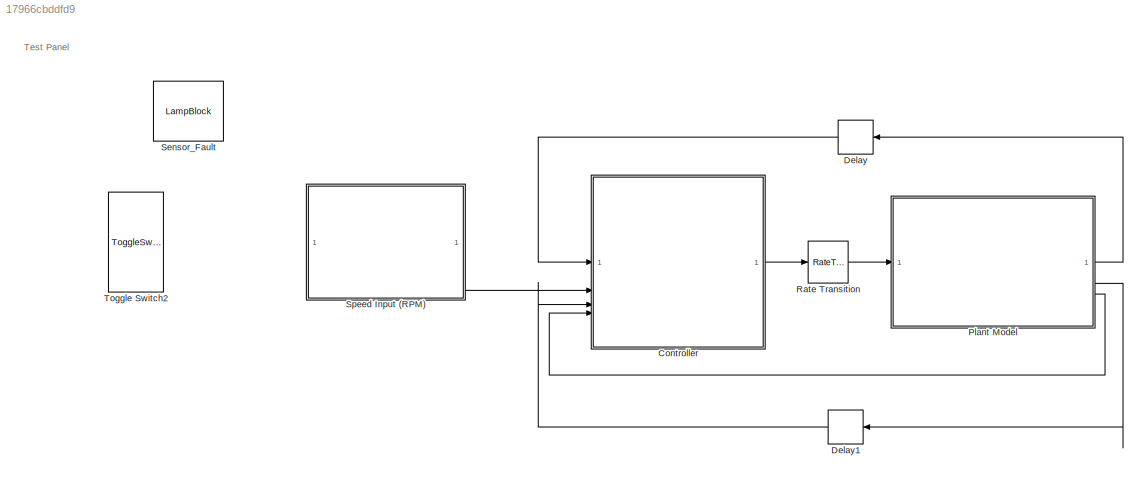
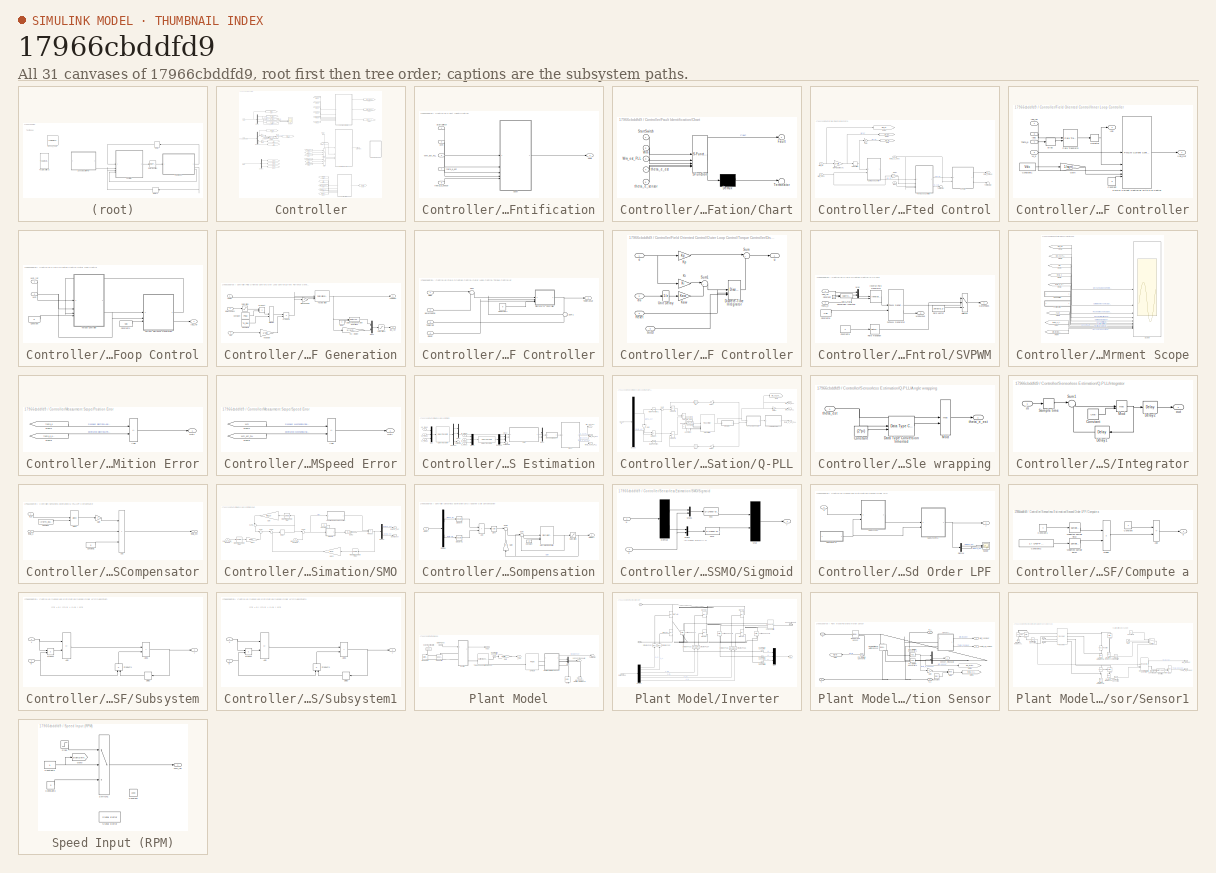
[diagram: thumbnail index - all 31 canvases of the model, root first then tree order]
MODEL slx_17966cbddfd9
KIND model
CONFIG AbsTol = auto
CONFIG EnableMultiTasking = off
CONFIG FixedStep = auto
CONFIG MaxStep = auto
CONFIG MinStep = auto
CONFIG RelTol = 1e-7
CONFIG SampleTimeConstraint = Unconstrained
CONFIG SolverName = ode23
CONFIG StartTime = 0.0
CONFIG StopTime = 1
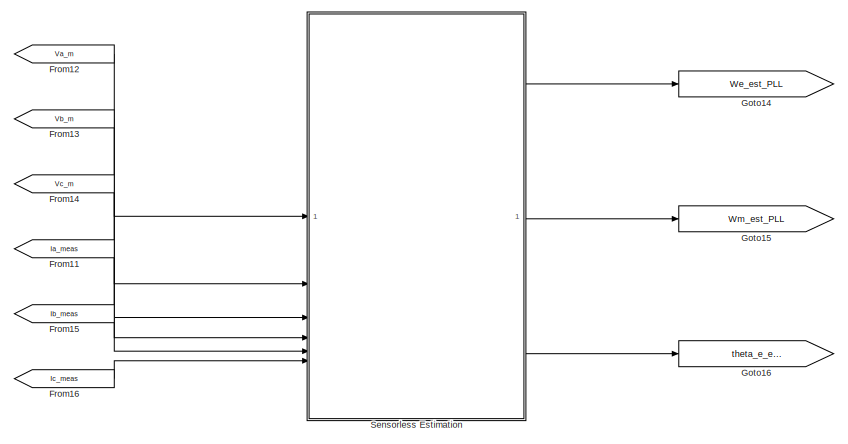
[diagram: Controller - part 1/3, top right region]
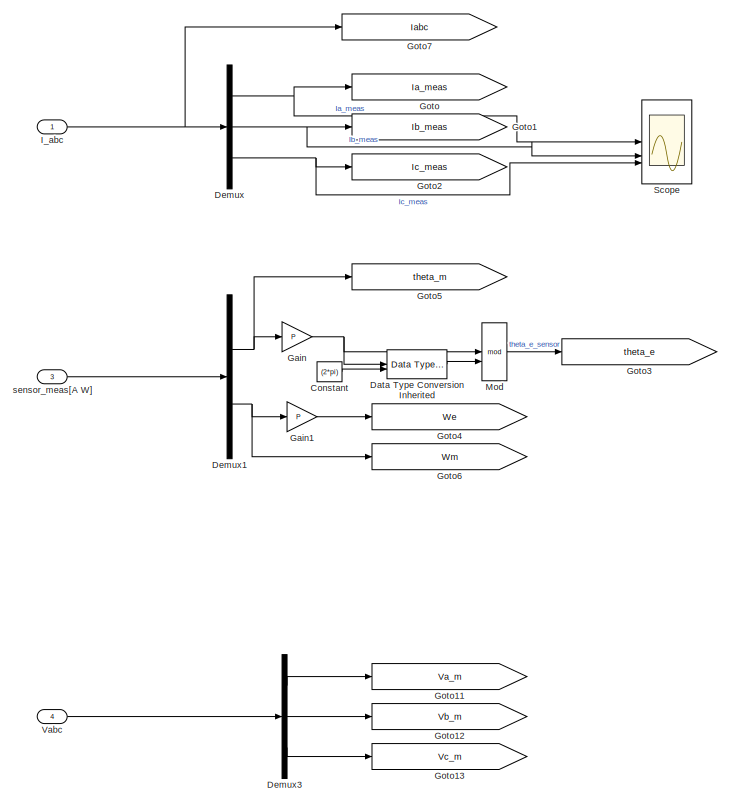
[diagram: Controller - part 2/3, middle left region]
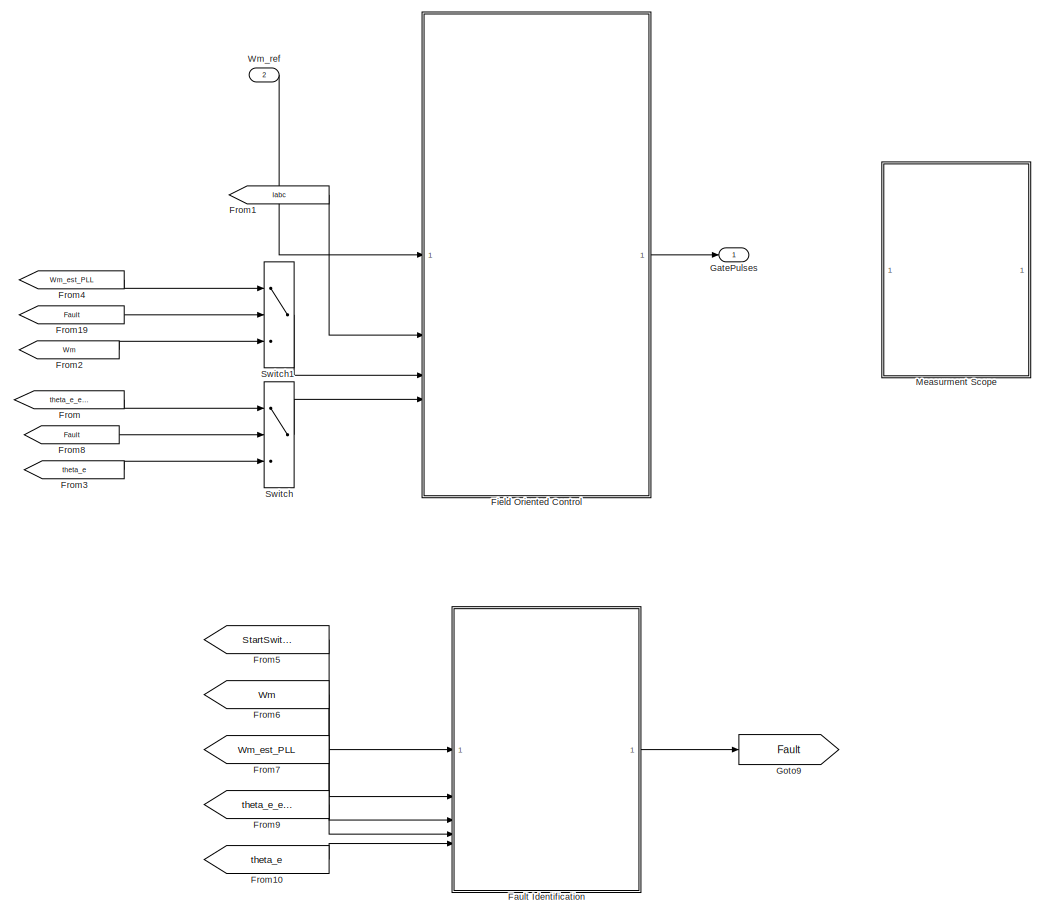
[diagram: Controller - part 3/3, bottom right region]
BLOCK [SubSystem] Controller
BLOCK [Constant] Controller/Constant
  Value = (2*pi)
BLOCK [Reference] Controller/Data Type Conversion Inherited  REF=simulink/Signal
Attributes/Data Type
Conversion
Inherited
  SourceBlock = simulink/Signal\nAttributes/Data Type\nConversion\nInherited
  SourceType = Conversion Inherited
BLOCK [Demux] Controller/Demux
  Outputs = 3
BLOCK [Demux] Controller/Demux1
  Outputs = 2
BLOCK [Demux] Controller/Demux3
  Outputs = 3
BLOCK [SubSystem] Controller/Fault Identification
BLOCK [SubSystem] Controller/Fault Identification/Chart
  ErrorFcn = Stateflow.Translate.translate
  PermitHierarchicalResolution = ExplicitOnly
  SFBlockType = Chart
  TreatAsAtomicUnit = on
BLOCK [Demux] Controller/Fault Identification/Chart/ Demux 
  Outputs = 1
BLOCK [S-Function] Controller/Fault Identification/Chart/ SFunction 
  EnableBusSupport = on
  FunctionName = sf_sfun
  PortCounts = [5 2]
  SFcnIsStateOwnerBlock = off
  SFunctionDeploymentMode = off
  Tag = Stateflow S-Function 3
BLOCK [Terminator] Controller/Fault Identification/Chart/ Terminator 
BLOCK [Outport] Controller/Fault Identification/Chart/Fault
BLOCK [Inport] Controller/Fault Identification/Chart/StartSwitch
BLOCK [Inport] Controller/Fault Identification/Chart/Wm
  Port = 2
BLOCK [Inport] Controller/Fault Identification/Chart/Wm_est_PLL
  Port = 3
BLOCK [Inport] Controller/Fault Identification/Chart/theta_e_est
  Port = 4
BLOCK [Inport] Controller/Fault Identification/Chart/theta_e_sensor
  Port = 5
BLOCK [Outport] Controller/Fault Identification/Fault
BLOCK [Inport] Controller/Fault Identification/StartSwitch
BLOCK [Inport] Controller/Fault Identification/Wm
  Port = 2
BLOCK [Inport] Controller/Fault Identification/Wm_est_PLL
  Port = 3
BLOCK [Inport] Controller/Fault Identification/theta_e_est
  Port = 4
BLOCK [Inport] Controller/Fault Identification/theta_e_sensor
  Port = 5
BLOCK [SubSystem] Controller/Field Oriented Control
BLOCK [Gain] Controller/Field Oriented Control/Gain
  Gain = P
BLOCK [Gain] Controller/Field Oriented Control/Gain1
  Gain = P
BLOCK [Outport] Controller/Field Oriented Control/Gate_Pulses
BLOCK [Goto] Controller/Field Oriented Control/Goto
  GotoTag = We_ref
  TagVisibility = global
BLOCK [Goto] Controller/Field Oriented Control/Goto1
  GotoTag = Wm_ref1
  TagVisibility = global
BLOCK [Goto] Controller/Field Oriented Control/Goto8
  GotoTag = Wm_ref
  TagVisibility = global
BLOCK [Inport] Controller/Field Oriented Control/Iabc
  Port = 2
BLOCK [SubSystem] Controller/Field Oriented Control/Inner Loop Controller
BLOCK [Bias] Controller/Field Oriented Control/Inner Loop Controller/Bias
  Bias = theta_offset
  SaturateOnIntegerOverflow = off
BLOCK [Constant] Controller/Field Oriented Control/Inner Loop Controller/Constant
  SampleTime = -1
  Value = 0
BLOCK [Constant] Controller/Field Oriented Control/Inner Loop Controller/Constant1
  Value = Vdc
BLOCK [Gain] Controller/Field Oriented Control/Inner Loop Controller/Gain
  Gain = 1/sqrt(3)
BLOCK [Inport] Controller/Field Oriented Control/Inner Loop Controller/Iabc
  Port = 3
BLOCK [Outport] Controller/Field Oriented Control/Inner Loop Controller/Idq
  Port = 2
  VectorParamsAs1DForOutWhenUnconnected = off
BLOCK [Inport] Controller/Field Oriented Control/Inner Loop Controller/Idq_ref
BLOCK [Reference] Controller/Field Oriented Control/Inner Loop Controller/PMSM Current Controller with Pre Control  REF=eePmsmCurrentController/PMSM Current Controller
with Pre-Control
  LibrarySourceBlock = eePmsmFieldOrientedControl/PMSM Field-Oriented\nControl/Inner loop control/PMSM Current Controller\nwith Pre-Control
  SourceBlock = eePmsmCurrentController/PMSM Current Controller\nwith Pre-Control
  SourceType = PMSM Current Controller with Pre-Control
BLOCK [Reference] Controller/Field Oriented Control/Inner Loop Controller/Park Transform  REF=eeTransforms/Park Transform
  LibrarySourceBlock = eePmsmFieldOrientedControl/PMSM Field-Oriented\nControl/Inner loop control/Park Transform
  SourceBlock = eeTransforms/Park Transform
  SourceType = Park Transform
BLOCK [Selector] Controller/Field Oriented Control/Inner Loop Controller/Selector
  IndexOptions = Index vector (dialog)
  Indices = [1 2]
  InputPortWidth = 3
  OutputSizes = 1
BLOCK [Inport] Controller/Field Oriented Control/Inner Loop Controller/Theta_e
  Port = 4
BLOCK [Outport] Controller/Field Oriented Control/Inner Loop Controller/Vdq_Ref
  VectorParamsAs1DForOutWhenUnconnected = off
BLOCK [Inport] Controller/Field Oriented Control/Inner Loop Controller/W_e
  Port = 2
BLOCK [SubSystem] Controller/Field Oriented Control/Outer Loop Control
BLOCK [Constant] Controller/Field Oriented Control/Outer Loop Control/Constant
  Value = 0
BLOCK [Constant] Controller/Field Oriented Control/Outer Loop Control/Constant1
  Value = Vdc
BLOCK [SubSystem] Controller/Field Oriented Control/Outer Loop Control/Current Refrence Generation
BLOCK [Constant] Controller/Field Oriented Control/Outer Loop Control/Current Refrence Generation/Constant
  SampleTime = -1
  Value = Pmax
BLOCK [Constant] Controller/Field Oriented Control/Outer Loop Control/Current Refrence Generation/Constant1
  SampleTime = -1
  Value = Te_max
BLOCK [Reference] Controller/Field Oriented Control/Outer Loop Control/Current Refrence Generation/Data Type Conversion Inherited2  REF=simulink/Signal
Attributes/Data Type
Conversion
Inherited
  SourceBlock = simulink/Signal\nAttributes/Data Type\nConversion\nInherited
  SourceType = Conversion Inherited
BLOCK [Outport] Controller/Field Oriented Control/Outer Loop Control/Current Refrence Generation/Idq_ref
  Port = 2
BLOCK [MinMax] Controller/Field Oriented Control/Outer Loop Control/Current Refrence Generation/MinMax
  Inputs = 2
  OutDataTypeStr = Inherit: Same as first input
BLOCK [Mux] Controller/Field Oriented Control/Outer Loop Control/Current Refrence Generation/Mux1
  DisplayOption = bar
  Inputs = 2
BLOCK [Product] Controller/Field Oriented Control/Outer Loop Control/Current Refrence Generation/Product
  Inputs = /*
  OutDataTypeStr = Inherit: Same as first input
BLOCK [Product] Controller/Field Oriented Control/Outer Loop Control/Current Refrence Generation/Product1
BLOCK [Saturate] Controller/Field Oriented Control/Outer Loop Control/Current Refrence Generation/Saturation
  LowerLimit = (Pmax/Te_max)
  UpperLimit = inf
BLOCK [Saturate] Controller/Field Oriented Control/Outer Loop Control/Current Refrence Generation/Saturation1
  LowerLimit = -Imax
  UpperLimit = Imax
BLOCK [Gain] Controller/Field Oriented Control/Outer Loop Control/Current Refrence Generation/Sign Change
  Gain = -1
BLOCK [Reference] Controller/Field Oriented Control/Outer Loop Control/Current Refrence Generation/Tq saturation  REF=simulink/Discontinuities/Saturation
Dynamic
  SourceBlock = simulink/Discontinuities/Saturation\nDynamic
  SourceType = Saturation Dynamic
BLOCK [Gain] Controller/Field Oriented Control/Outer Loop Control/Current Refrence Generation/Tq--> iqRef
  Gain = 2/(3*P*Psi)
BLOCK [Inport] Controller/Field Oriented Control/Outer Loop Control/Current Refrence Generation/TqRef
BLOCK [Outport] Controller/Field Oriented Control/Outer Loop Control/Current Refrence Generation/TqRefSat
  VectorParamsAs1DForOutWhenUnconnected = off
BLOCK [Inport] Controller/Field Oriented Control/Outer Loop Control/Current Refrence Generation/Vdc
  Port = 3
BLOCK [Gain] Controller/Field Oriented Control/Outer Loop Control/Current Refrence Generation/Vdc factor
  Gain = 1/Vdc
BLOCK [Constant] Controller/Field Oriented Control/Outer Loop Control/Current Refrence Generation/idRef
  SampleTime = -1
  Value = 0
BLOCK [Inport] Controller/Field Oriented Control/Outer Loop Control/Current Refrence Generation/wMechanical
  Port = 2
BLOCK [Outport] Controller/Field Oriented Control/Outer Loop Control/Idq_ref
BLOCK [SubSystem] Controller/Field Oriented Control/Outer Loop Control/Torque Controller
BLOCK [Constant] Controller/Field Oriented Control/Outer Loop Control/Torque Controller/Constant7
  Value = 0
BLOCK [SubSystem] Controller/Field Oriented Control/Outer Loop Control/Torque Controller/Discrete PI Controller
  AncestorBlock = eeDiscretePi/Discrete PI Controller
  CloseFcn = ee_sli_rtmsupport( 'closefcn', gcbh );
  CopyFcn = ee_sli_rtmsupport( 'copyfcn', gcbh );
  DeleteFcn = ee_sli_rtmsupport( 'deletefcn', gcbh );
  LoadFcn = ee_sli_rtmsupport( 'loadfcn', gcbh );
  ModelCloseFcn = ee_sli_rtmsupport( 'modelclosefcn', gcbh );
  OpenFcn = ee_sli_rtmsupport( 'openfcn', gcbh );
  PostSaveFcn = ee_sli_rtmsupport( 'postsavefcn', gcbh );
  PreCopyFcn = ee_sli_rtmsupport( 'precopyfcn', gcbh );
  PreDeleteFcn = ee_sli_rtmsupport( 'predeletefcn', gcbh );
BLOCK [DiscreteIntegrator] Controller/Field Oriented Control/Outer Loop Control/Torque Controller/Discrete PI Controller/Discrete-Time Integrator
  ExternalReset = rising
  ICPrevOutput = DiscIntNeverNeededParam
  ICPrevScaledInput = DiscIntNeverNeededParam
  InitialCondition = x0
  InitialConditionSetting = Auto
  InitialConditionSource = external
  IntegratorMethod = Integration: Backward Euler
  SampleTime = Ts
BLOCK [Inport] Controller/Field Oriented Control/Outer Loop Control/Torque Controller/Discrete PI Controller/Init0
  Port = 4
BLOCK [Gain] Controller/Field Oriented Control/Outer Loop Control/Torque Controller/Discrete PI Controller/Kaw
  Gain = Kaw
BLOCK [Gain] Controller/Field Oriented Control/Outer Loop Control/Torque Controller/Discrete PI Controller/Ki
  Gain = Ki
BLOCK [Gain] Controller/Field Oriented Control/Outer Loop Control/Torque Controller/Discrete PI Controller/Kp
  Gain = Kp
BLOCK [Inport] Controller/Field Oriented Control/Outer Loop Control/Torque Controller/Discrete PI Controller/Reset
  Port = 3
  SampleTime = Ts
BLOCK [Sum] Controller/Field Oriented Control/Outer Loop Control/Torque Controller/Discrete PI Controller/Sum
  Inputs = |++
BLOCK [Sum] Controller/Field Oriented Control/Outer Loop Control/Torque Controller/Discrete PI Controller/Sum1
  Inputs = |++
BLOCK [UnitDelay] Controller/Field Oriented Control/Outer Loop Control/Torque Controller/Discrete PI Controller/Unit Delay
  HasFrameUpgradeWarning = on
  SampleTime = Ts
BLOCK [Inport] Controller/Field Oriented Control/Outer Loop Control/Torque Controller/Discrete PI Controller/du
  Port = 2
  SampleTime = Ts
BLOCK [Inport] Controller/Field Oriented Control/Outer Loop Control/Torque Controller/Discrete PI Controller/e
  SampleTime = Ts
BLOCK [Outport] Controller/Field Oriented Control/Outer Loop Control/Torque Controller/Discrete PI Controller/u
  VectorParamsAs1DForOutWhenUnconnected = off
BLOCK [Inport] Controller/Field Oriented Control/Outer Loop Control/Torque Controller/Reset
  Port = 4
  SampleTime = Ts
BLOCK [Sum] Controller/Field Oriented Control/Outer Loop Control/Torque Controller/Sum
  Inputs = |+-
BLOCK [Sum] Controller/Field Oriented Control/Outer Loop Control/Torque Controller/Sum1
  Inputs = -+
BLOCK [Inport] Controller/Field Oriented Control/Outer Loop Control/Torque Controller/TqRefSat
  Port = 3
  SampleTime = Ts
BLOCK [Outport] Controller/Field Oriented Control/Outer Loop Control/Torque Controller/TqRefUnsat
  VectorParamsAs1DForOutWhenUnconnected = off
BLOCK [Inport] Controller/Field Oriented Control/Outer Loop Control/Torque Controller/wMechanical
  Port = 2
  SampleTime = Ts
BLOCK [Inport] Controller/Field Oriented Control/Outer Loop Control/Torque Controller/wRef
BLOCK [Inport] Controller/Field Oriented Control/Outer Loop Control/Wm
  Port = 2
BLOCK [Inport] Controller/Field Oriented Control/Outer Loop Control/Wm_ref
BLOCK [RateLimiter] Controller/Field Oriented Control/Rate Limiter
  FallingSlewLimit = -(Te_max/J)
  NameLocation = top
  RisingSlewLimit = (Te_max/J)
  SampleTimeMode = inherited
BLOCK [SubSystem] Controller/Field Oriented Control/SVPWM
BLOCK [Constant] Controller/Field Oriented Control/SVPWM/Constant
  SampleTime = Tsc
  Value = 0
BLOCK [Constant] Controller/Field Oriented Control/SVPWM/Constant8
  Value = Vdc
BLOCK [Constant] Controller/Field Oriented Control/SVPWM/Constant9
BLOCK [Reference] Controller/Field Oriented Control/SVPWM/Data Type Conversion Inherited  REF=simulink/Signal
Attributes/Data Type
Conversion
Inherited
  SourceBlock = simulink/Signal\nAttributes/Data Type\nConversion\nInherited
  SourceType = Conversion Inherited
BLOCK [Outport] Controller/Field Oriented Control/SVPWM/GatePulses
  VectorParamsAs1DForOutWhenUnconnected = off
BLOCK [Reference] Controller/Field Oriented Control/SVPWM/Inverse Park Transform  REF=eeTransforms/Inverse
Park Transform
  LibrarySourceBlock = eePmsmFieldOrientedControl/PMSM Field-Oriented\nControl/PWM/Inverse\nPark Transform
  SourceBlock = eeTransforms/Inverse\nPark Transform
  SourceType = Inverse Park Transform
BLOCK [Outport] Controller/Field Oriented Control/SVPWM/ModWave
  Port = 2
  SampleTime = Tsc
  VectorParamsAs1DForOutWhenUnconnected = off
BLOCK [Mux] Controller/Field Oriented Control/SVPWM/Mux
  DisplayOption = bar
  Inputs = 2
BLOCK [RateTransition] Controller/Field Oriented Control/SVPWM/Rate Transition
  OutPortSampleTime = Ts
BLOCK [Reference] Controller/Field Oriented Control/SVPWM/SVPWM Generator  REF=eePwmGeneratorTwoLevel/PWM Generator
(Three-phase, Two-level)
  LibrarySourceBlock = eePmsmFieldOrientedControl/PMSM Field-Oriented\nControl/PWM/PWM Generator\n(Three-phase, Two-level)
  SourceBlock = eePwmGeneratorTwoLevel/PWM Generator\n(Three-phase, Two-level)
  SourceType = PWM Generator (three-phase, two-level)
BLOCK [Switch] Controller/Field Oriented Control/SVPWM/Switch1
  Criteria = u2 > Threshold
  InputSameDT = off
  SaturateOnIntegerOverflow = off
BLOCK [Inport] Controller/Field Oriented Control/SVPWM/Theta_e
  Port = 2
BLOCK [Inport] Controller/Field Oriented Control/SVPWM/Vdq_ref
BLOCK [Constant] Controller/Field Oriented Control/SVPWM/Zero vector
  SampleTime = Ts
  Value = zeros(6,1)
BLOCK [Terminator] Controller/Field Oriented Control/Terminator
BLOCK [Terminator] Controller/Field Oriented Control/Terminator2
BLOCK [Inport] Controller/Field Oriented Control/Wm_ref
BLOCK [Inport] Controller/Field Oriented Control/Wm_sens
  Port = 3
BLOCK [Gain] Controller/Field Oriented Control/rpm -> rad//s [mech.]
  Gain = (2*pi/60)
  NameLocation = left
BLOCK [Inport] Controller/Field Oriented Control/theta_e_sens
  Port = 4
BLOCK [From] Controller/From
  GotoTag = theta_e_est_PLL
  TagVisibility = global
BLOCK [From] Controller/From1
  GotoTag = Iabc
  TagVisibility = global
BLOCK [From] Controller/From10
  GotoTag = theta_e
  TagVisibility = global
BLOCK [From] Controller/From11
  GotoTag = Ia_meas
  TagVisibility = global
BLOCK [From] Controller/From12
  GotoTag = Va_m
  TagVisibility = global
BLOCK [From] Controller/From13
  GotoTag = Vb_m
  TagVisibility = global
BLOCK [From] Controller/From14
  GotoTag = Vc_m
  TagVisibility = global
BLOCK [From] Controller/From15
  GotoTag = Ib_meas
  TagVisibility = global
BLOCK [From] Controller/From16
  GotoTag = Ic_meas
  TagVisibility = global
BLOCK [From] Controller/From19
  GotoTag = Fault
  TagVisibility = global
BLOCK [From] Controller/From2
  GotoTag = Wm
  TagVisibility = global
BLOCK [From] Controller/From3
  GotoTag = theta_e
  TagVisibility = global
BLOCK [From] Controller/From4
  GotoTag = Wm_est_PLL
  TagVisibility = global
BLOCK [From] Controller/From5
  GotoTag = StartSwitch
BLOCK [From] Controller/From6
  GotoTag = Wm
  TagVisibility = global
BLOCK [From] Controller/From7
  GotoTag = Wm_est_PLL
  TagVisibility = global
BLOCK [From] Controller/From8
  GotoTag = Fault
  TagVisibility = global
BLOCK [From] Controller/From9
  GotoTag = theta_e_est_PLL
  TagVisibility = global
BLOCK [Gain] Controller/Gain
  Gain = P
BLOCK [Gain] Controller/Gain1
  Gain = P
BLOCK [Outport] Controller/GatePulses
BLOCK [Goto] Controller/Goto
  GotoTag = Ia_meas
  TagVisibility = global
BLOCK [Goto] Controller/Goto1
  GotoTag = Ib_meas
  TagVisibility = global
BLOCK [Goto] Controller/Goto11
  GotoTag = Va_m
  TagVisibility = global
BLOCK [Goto] Controller/Goto12
  GotoTag = Vb_m
  TagVisibility = global
BLOCK [Goto] Controller/Goto13
  GotoTag = Vc_m
  TagVisibility = global
BLOCK [Goto] Controller/Goto14
  GotoTag = We_est_PLL
  TagVisibility = global
BLOCK [Goto] Controller/Goto15
  GotoTag = Wm_est_PLL
  TagVisibility = global
BLOCK [Goto] Controller/Goto16
  GotoTag = theta_e_est_PLL
  TagVisibility = global
BLOCK [Goto] Controller/Goto2
  GotoTag = Ic_meas
  TagVisibility = global
BLOCK [Goto] Controller/Goto3
  GotoTag = theta_e
  TagVisibility = global
BLOCK [Goto] Controller/Goto4
  GotoTag = We
  TagVisibility = global
BLOCK [Goto] Controller/Goto5
  GotoTag = theta_m
  TagVisibility = global
BLOCK [Goto] Controller/Goto6
  GotoTag = Wm
  TagVisibility = global
BLOCK [Goto] Controller/Goto7
  GotoTag = Iabc
  TagVisibility = global
BLOCK [Goto] Controller/Goto9
  GotoTag = Fault
  TagVisibility = global
BLOCK [Inport] Controller/I_abc
BLOCK [SubSystem] Controller/Measurment Scope
BLOCK [From] Controller/Measurment Scope/From
  GotoTag = theta_e_testSensor
  TagVisibility = global
BLOCK [From] Controller/Measurment Scope/From1
  GotoTag = theta_e
  TagVisibility = global
BLOCK [From] Controller/Measurment Scope/From2
  GotoTag = theta_e_est_PLL
  TagVisibility = global
BLOCK [From] Controller/Measurment Scope/From3
  GotoTag = Wm_est_PLL
  TagVisibility = global
BLOCK [From] Controller/Measurment Scope/From4
  GotoTag = Wm
  TagVisibility = global
BLOCK [From] Controller/Measurment Scope/From5
  GotoTag = Wm_ref1
  TagVisibility = global
BLOCK [From] Controller/Measurment Scope/From6
  GotoTag = Fault
  TagVisibility = global
BLOCK [From] Controller/Measurment Scope/From7
  GotoTag = Wm_testSensor
  TagVisibility = global
BLOCK [SubSystem] Controller/Measurment Scope/Position Error
BLOCK [Sum] Controller/Measurment Scope/Position Error/Add
  IconShape = rectangular
  Inputs = +-
BLOCK [From] Controller/Measurment Scope/Position Error/From3
  GotoTag = theta_e_est_PLL
  TagVisibility = global
BLOCK [From] Controller/Measurment Scope/Position Error/From4
  GotoTag = theta_e
  TagVisibility = global
BLOCK [Outport] Controller/Measurment Scope/Position Error/Out1
BLOCK [Scope] Controller/Measurment Scope/Scope
  Floating = off
  NumInputPorts = 10
  ScopeSpecificationString = Simulink.scopes.TimeScopeBlockCfg('CurrentConfiguration', extmgr.ConfigurationSet(extmgr.Configuration('Core','General UI',true),extmgr.Configuration('Core','Source UI',true),extmgr.Configuration('Sources','WiredSimulink',true,'DataLoggingVariableName','ScopeData1'),extmgr.Configuration('Visuals','Time Domain',true,'SerializedDisplays',{struct('MinYLimReal','91.62979','MaxYLimReal','222.52948','YL...<+9646ch>
BLOCK [SubSystem] Controller/Measurment Scope/Speed Error
BLOCK [Sum] Controller/Measurment Scope/Speed Error/Add
  IconShape = rectangular
  Inputs = +-
BLOCK [From] Controller/Measurment Scope/Speed Error/From3
  GotoTag = Wm_est_PLL
  TagVisibility = global
BLOCK [From] Controller/Measurment Scope/Speed Error/From4
  GotoTag = Wm
  TagVisibility = global
BLOCK [Outport] Controller/Measurment Scope/Speed Error/Out1
BLOCK [Math] Controller/Mod
  Operator = mod
BLOCK [Scope] Controller/Scope
  Floating = off
  NumInputPorts = 3
  ScopeSpecificationString = Simulink.scopes.TimeScopeBlockCfg('CurrentConfiguration', extmgr.ConfigurationSet(extmgr.Configuration('Core','General UI',true),extmgr.Configuration('Core','Source UI',true),extmgr.Configuration('Sources','WiredSimulink',true,'DataLoggingVariableName','ScopeData1'),extmgr.Configuration('Visuals','Time Domain',true,'SerializedDisplays',{struct('MinYLimReal','-281.54513','MaxYLimReal','263.45732','...<+1484ch>
BLOCK [SubSystem] Controller/Sensorless Estimation
BLOCK [Reference] Controller/Sensorless Estimation/Clarke Transform  REF=mcbcontrolslib/Clarke Transform
  LibrarySourceBlock = mcbhdllib/Controls/Math Transforms/Clarke Transform
  SourceBlock = mcbcontrolslib/Clarke Transform
  SourceType = Clarke Transform
BLOCK [Reference] Controller/Sensorless Estimation/Clarke Transform1  REF=mcbcontrolslib/Clarke Transform
  LibrarySourceBlock = mcbhdllib/Controls/Math Transforms/Clarke Transform
  SourceBlock = mcbcontrolslib/Clarke Transform
  SourceType = Clarke Transform
BLOCK [Demux] Controller/Sensorless Estimation/Demux4
  Outputs = 3
BLOCK [Demux] Controller/Sensorless Estimation/Demux5
  Outputs = 3
BLOCK [Inport] Controller/Sensorless Estimation/Ia_meas
  Port = 4
BLOCK [Inport] Controller/Sensorless Estimation/Ib_meas
  Port = 5
BLOCK [Inport] Controller/Sensorless Estimation/Ic_meas
  Port = 6
BLOCK [Mux] Controller/Sensorless Estimation/Mux
  DisplayOption = bar
  Inputs = 3
BLOCK [Mux] Controller/Sensorless Estimation/Mux1
  DisplayOption = bar
  Inputs = 2
BLOCK [Mux] Controller/Sensorless Estimation/Mux2
  DisplayOption = bar
  Inputs = 2
BLOCK [Mux] Controller/Sensorless Estimation/Mux3
  DisplayOption = bar
  Inputs = 3
BLOCK [Mux] Controller/Sensorless Estimation/Mux4
  DisplayOption = bar
  Inputs = 2
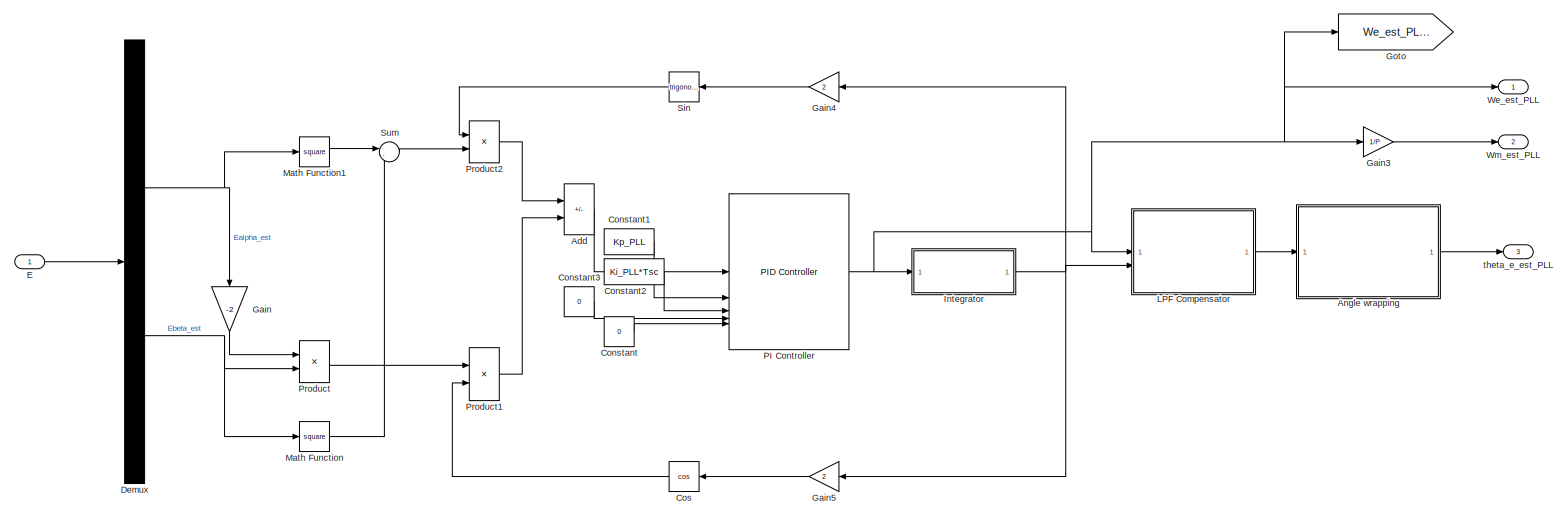
[diagram: Controller/Sensorless Estimation/Q-PLL - part 1/1, most of the canvas]
BLOCK [SubSystem] Controller/Sensorless Estimation/Q-PLL
BLOCK [Sum] Controller/Sensorless Estimation/Q-PLL/Add
  IconShape = rectangular
  Inputs = +-
BLOCK [SubSystem] Controller/Sensorless Estimation/Q-PLL/Angle wrapping
BLOCK [Constant] Controller/Sensorless Estimation/Q-PLL/Angle wrapping/Constant
  Value = (2*pi)
BLOCK [Reference] Controller/Sensorless Estimation/Q-PLL/Angle wrapping/Data Type Conversion Inherited  REF=simulink/Signal
Attributes/Data Type
Conversion
Inherited
  SourceBlock = simulink/Signal\nAttributes/Data Type\nConversion\nInherited
  SourceType = Conversion Inherited
BLOCK [Math] Controller/Sensorless Estimation/Q-PLL/Angle wrapping/Mod
  Operator = mod
BLOCK [Outport] Controller/Sensorless Estimation/Q-PLL/Angle wrapping/theta_e_est
BLOCK [Inport] Controller/Sensorless Estimation/Q-PLL/Angle wrapping/theta_est
BLOCK [Constant] Controller/Sensorless Estimation/Q-PLL/Constant
  Value = 0
BLOCK [Constant] Controller/Sensorless Estimation/Q-PLL/Constant1
  Value = Kp_PLL
BLOCK [Constant] Controller/Sensorless Estimation/Q-PLL/Constant2
  Value = Ki_PLL*Tsc
BLOCK [Constant] Controller/Sensorless Estimation/Q-PLL/Constant3
  Value = 0
BLOCK [Trigonometry] Controller/Sensorless Estimation/Q-PLL/Cos
  Operator = cos
BLOCK [Demux] Controller/Sensorless Estimation/Q-PLL/Demux
  Outputs = 2
BLOCK [Inport] Controller/Sensorless Estimation/Q-PLL/E
BLOCK [Gain] Controller/Sensorless Estimation/Q-PLL/Gain
  Gain = -2
  NameLocation = left
BLOCK [Gain] Controller/Sensorless Estimation/Q-PLL/Gain3
  Gain = 1/P
BLOCK [Gain] Controller/Sensorless Estimation/Q-PLL/Gain4
  Gain = 2
BLOCK [Gain] Controller/Sensorless Estimation/Q-PLL/Gain5
  Gain = 2
BLOCK [Goto] Controller/Sensorless Estimation/Q-PLL/Goto
  GotoTag = We_est_PLL1
  TagVisibility = global
BLOCK [SubSystem] Controller/Sensorless Estimation/Q-PLL/Integrator
BLOCK [Constant] Controller/Sensorless Estimation/Q-PLL/Integrator/Constant
  Value = (2*pi)
BLOCK [Delay] Controller/Sensorless Estimation/Q-PLL/Integrator/Delay1
  DelayLength = 1
  InputPortMap = u0
  NameLocation = top
BLOCK [Delay] Controller/Sensorless Estimation/Q-PLL/Integrator/Delay2
  DelayLength = 1
  InputPortMap = u0
BLOCK [Math] Controller/Sensorless Estimation/Q-PLL/Integrator/Mod
  Operator = mod
BLOCK [SampleTimeMath] Controller/Sensorless Estimation/Q-PLL/Integrator/Sample time
  TsampMathOp = *
BLOCK [Sum] Controller/Sensorless Estimation/Q-PLL/Integrator/Sum1
  Inputs = |++
BLOCK [Inport] Controller/Sensorless Estimation/Q-PLL/Integrator/in
BLOCK [Outport] Controller/Sensorless Estimation/Q-PLL/Integrator/out
BLOCK [SubSystem] Controller/Sensorless Estimation/Q-PLL/LPF Compensator
BLOCK [Sum] Controller/Sensorless Estimation/Q-PLL/LPF Compensator/Add
  IconShape = rectangular
  Inputs = +++
BLOCK [Trigonometry] Controller/Sensorless Estimation/Q-PLL/LPF Compensator/Atan2
  Operator = atan2
BLOCK [Constant] Controller/Sensorless Estimation/Q-PLL/LPF Compensator/Constant
  Value = (2*pi*Fc_EMF)
BLOCK [Constant] Controller/Sensorless Estimation/Q-PLL/LPF Compensator/Constant1
  Value = 0
BLOCK [Gain] Controller/Sensorless Estimation/Q-PLL/LPF Compensator/Gain
  Gain = 2
BLOCK [Outport] Controller/Sensorless Estimation/Q-PLL/LPF Compensator/theta_est
BLOCK [Inport] Controller/Sensorless Estimation/Q-PLL/LPF Compensator/theta_u
  Port = 2
BLOCK [Inport] Controller/Sensorless Estimation/Q-PLL/LPF Compensator/w_e
BLOCK [Math] Controller/Sensorless Estimation/Q-PLL/Math Function
  Operator = square
BLOCK [Math] Controller/Sensorless Estimation/Q-PLL/Math Function1
  Operator = square
BLOCK [Reference] Controller/Sensorless Estimation/Q-PLL/PI Controller  REF=slpidlib/PID Controller
  LibrarySourceBlock = simulink/Continuous/PID Controller
  SourceBlock = slpidlib/PID Controller
  SourceType = PID 1dof
BLOCK [Product] Controller/Sensorless Estimation/Q-PLL/Product
BLOCK [Product] Controller/Sensorless Estimation/Q-PLL/Product1
BLOCK [Product] Controller/Sensorless Estimation/Q-PLL/Product2
BLOCK [Trigonometry] Controller/Sensorless Estimation/Q-PLL/Sin
BLOCK [Sum] Controller/Sensorless Estimation/Q-PLL/Sum
  Inputs = |-+
BLOCK [Outport] Controller/Sensorless Estimation/Q-PLL/We_est_PLL
BLOCK [Outport] Controller/Sensorless Estimation/Q-PLL/Wm_est_PLL
  Port = 2
BLOCK [Outport] Controller/Sensorless Estimation/Q-PLL/theta_e_est_PLL
  Port = 3
BLOCK [SubSystem] Controller/Sensorless Estimation/SMO
BLOCK [SubSystem] Controller/Sensorless Estimation/SMO/Adaptive Gain Compensation
BLOCK [Sum] Controller/Sensorless Estimation/SMO/Adaptive Gain Compensation/Add
  IconShape = rectangular
BLOCK [Constant] Controller/Sensorless Estimation/SMO/Adaptive Gain Compensation/Constant
  Value = 0
BLOCK [Demux] Controller/Sensorless Estimation/SMO/Adaptive Gain Compensation/Demux
  Outputs = 2
BLOCK [Reference] Controller/Sensorless Estimation/SMO/Adaptive Gain Compensation/Discrete PI Controller  REF=eeDiscretePi/Discrete PI Controller
  LibrarySourceBlock = ee_sl_lib/General Control/Discrete PI Controller
  SourceBlock = eeDiscretePi/Discrete PI Controller
  SourceType = Discrete PI Controller
BLOCK [Gain] Controller/Sensorless Estimation/SMO/Adaptive Gain Compensation/Gain
  Gain = m
  NameLocation = left
BLOCK [Inport] Controller/Sensorless Estimation/SMO/Adaptive Gain Compensation/Inport
BLOCK [Outport] Controller/Sensorless Estimation/SMO/Adaptive Gain Compensation/Outport
BLOCK [Saturate] Controller/Sensorless Estimation/SMO/Adaptive Gain Compensation/Saturation
  LowerLimit = 0
  UpperLimit = 1200
BLOCK [Sqrt] Controller/Sensorless Estimation/SMO/Adaptive Gain Compensation/Sqrt
BLOCK [Math] Controller/Sensorless Estimation/SMO/Adaptive Gain Compensation/Square
  Operator = square
BLOCK [Math] Controller/Sensorless Estimation/SMO/Adaptive Gain Compensation/Square1
  Operator = square
BLOCK [Sum] Controller/Sensorless Estimation/SMO/Adaptive Gain Compensation/Sum
  Inputs = |+-
BLOCK [Sum] Controller/Sensorless Estimation/SMO/Adaptive Gain Compensation/Sum1
  Inputs = |+-
BLOCK [Constant] Controller/Sensorless Estimation/SMO/Constant
  Value = a
BLOCK [Delay] Controller/Sensorless Estimation/SMO/Delay
  DelayLength = 1
  InputPortMap = u0
BLOCK [Demux] Controller/Sensorless Estimation/SMO/Demux
  Outputs = 2
BLOCK [Outport] Controller/Sensorless Estimation/SMO/Ealpha_est
BLOCK [Outport] Controller/Sensorless Estimation/SMO/Ebeta_est
  Port = 2
BLOCK [Gain] Controller/Sensorless Estimation/SMO/Gain
  Gain = (Rs/Ld)
BLOCK [Gain] Controller/Sensorless Estimation/SMO/Gain1
  Gain = (1/Ld)
BLOCK [Gain] Controller/Sensorless Estimation/SMO/Gain2
  Gain = K_SMO
BLOCK [Gain] Controller/Sensorless Estimation/SMO/Gain3
  Gain = (1/Ld)
BLOCK [Inport] Controller/Sensorless Estimation/SMO/Ialpha_beta_toPMSM
  Port = 2
BLOCK [Product] Controller/Sensorless Estimation/SMO/Product
BLOCK [SubSystem] Controller/Sensorless Estimation/SMO/Sigmoid
  PortSchema = {"entries":[{"content":{"sides":[{"content":{"connectorIds":["In1"]},"type":"ConnectorPlacement.EquallySpacedRectSide","uuid":"4184fe01-1c54-4a58-b578-546864c1fbde"},{"content":{"connectorIds":["Out1"],"side":"RIGHT"},"type":"ConnectorPlacement.EquallySpacedRectSide","uuid":"8bbd5052-c9e2-4bbb-a921-3dcf5babc961"},{"content":{"connectorIds":["In2"],"side":"TOP"},"type":"ConnectorPlacement.EquallySp...<+245ch>
BLOCK [Demux] Controller/Sensorless Estimation/SMO/Sigmoid/Demux
  Outputs = 2
BLOCK [Fcn] Controller/Sensorless Estimation/SMO/Sigmoid/Fcn
  Expr = (2/(1+exp(-u[2]*u[1])))-1
BLOCK [Fcn] Controller/Sensorless Estimation/SMO/Sigmoid/Fcn1
  Expr = (2/(1+exp(-u[2]*u[1])))-1
BLOCK [Mux] Controller/Sensorless Estimation/SMO/Sigmoid/Mux
  DisplayOption = bar
  Inputs = 2
BLOCK [Mux] Controller/Sensorless Estimation/SMO/Sigmoid/Mux1
  DisplayOption = bar
  Inputs = 2
BLOCK [Mux] Controller/Sensorless Estimation/SMO/Sigmoid/Mux2
  DisplayOption = bar
  Inputs = 2
BLOCK [Inport] Controller/Sensorless Estimation/SMO/Sigmoid/a
  Port = 2
BLOCK [Inport] Controller/Sensorless Estimation/SMO/Sigmoid/u
BLOCK [Outport] Controller/Sensorless Estimation/SMO/Sigmoid/y
BLOCK [Sum] Controller/Sensorless Estimation/SMO/Sum
  Inputs = |++
BLOCK [Sum] Controller/Sensorless Estimation/SMO/Sum1
  Inputs = |+-
BLOCK [Sum] Controller/Sensorless Estimation/SMO/Sum2
  Inputs = |+-
BLOCK [Sum] Controller/Sensorless Estimation/SMO/Sum3
  Inputs = |-+
  NameLocation = left
BLOCK [Inport] Controller/Sensorless Estimation/SMO/Valpha_beta_toPMSM
BLOCK [SampleTimeMath] Controller/Sensorless Estimation/SMO/Weighted Sample Time
  TsampMathOp = *
BLOCK [SampleTimeMath] Controller/Sensorless Estimation/SMO/Weighted Sample Time1
  TsampMathOp = *
BLOCK [SampleTimeMath] Controller/Sensorless Estimation/SMO/Weighted Sample Time2
  TsampMathOp = *
BLOCK [SubSystem] Controller/Sensorless Estimation/Second Order LPF
BLOCK [SubSystem] Controller/Sensorless Estimation/Second Order LPF/Compute a
BLOCK [Sum] Controller/Sensorless Estimation/Second Order LPF/Compute a/Add
  IconShape = rectangular
  Inputs = +-
BLOCK [Constant] Controller/Sensorless Estimation/Second Order LPF/Compute a/Constant
BLOCK [Constant] Controller/Sensorless Estimation/Second Order LPF/Compute a/Constant1
BLOCK [Constant] Controller/Sensorless Estimation/Second Order LPF/Compute a/Constant2
  Value = 1 / (2*pi*Fc_EMF)
BLOCK [Product] Controller/Sensorless Estimation/Second Order LPF/Compute a/Divide
  Inputs = */
BLOCK [SampleTimeMath] Controller/Sensorless Estimation/Second Order LPF/Compute a/Weighted Sample Time
  TsampMathOp = Ts Only
BLOCK [SampleTimeMath] Controller/Sensorless Estimation/Second Order LPF/Compute a/Weighted Sample Time1
  weightValue = 1
BLOCK [Outport] Controller/Sensorless Estimation/Second Order LPF/Compute a/a
BLOCK [Demux] Controller/Sensorless Estimation/Second Order LPF/Demux
  Outputs = 2
BLOCK [Scope] Controller/Sensorless Estimation/Second Order LPF/Scope
  Floating = off
  NumInputPorts = 2
  ScopeSpecificationString = Simulink.scopes.TimeScopeBlockCfg('CurrentConfiguration', extmgr.ConfigurationSet(extmgr.Configuration('Core','General UI',true),extmgr.Configuration('Core','Source UI',true),extmgr.Configuration('Sources','WiredSimulink',true,'DataLoggingVariableName','ScopeData1'),extmgr.Configuration('Visuals','Time Domain',true,'SerializedDisplays',{struct('MinYLimReal','-28.62044','MaxYLimReal','25.06833','YL...<+1469ch>
BLOCK [SubSystem] Controller/Sensorless Estimation/Second Order LPF/Subsystem
BLOCK [Sum] Controller/Sensorless Estimation/Second Order LPF/Subsystem/Add
  IconShape = rectangular
  Inputs = +-
BLOCK [Sum] Controller/Sensorless Estimation/Second Order LPF/Subsystem/Add1
  IconShape = rectangular
BLOCK [Delay] Controller/Sensorless Estimation/Second Order LPF/Subsystem/Delay
  DelayLength = 1
  InputPortMap = u0
BLOCK [Product] Controller/Sensorless Estimation/Second Order LPF/Subsystem/Product
BLOCK [Product] Controller/Sensorless Estimation/Second Order LPF/Subsystem/Product1
  NameLocation = right
BLOCK [Inport] Controller/Sensorless Estimation/Second Order LPF/Subsystem/a
  Port = 2
BLOCK [Inport] Controller/Sensorless Estimation/Second Order LPF/Subsystem/x
BLOCK [Outport] Controller/Sensorless Estimation/Second Order LPF/Subsystem/y
BLOCK [SubSystem] Controller/Sensorless Estimation/Second Order LPF/Subsystem1
BLOCK [Sum] Controller/Sensorless Estimation/Second Order LPF/Subsystem1/Add
  IconShape = rectangular
  Inputs = +-
BLOCK [Sum] Controller/Sensorless Estimation/Second Order LPF/Subsystem1/Add1
  IconShape = rectangular
BLOCK [Delay] Controller/Sensorless Estimation/Second Order LPF/Subsystem1/Delay
  DelayLength = 1
  InputPortMap = u0
BLOCK [Product] Controller/Sensorless Estimation/Second Order LPF/Subsystem1/Product
BLOCK [Product] Controller/Sensorless Estimation/Second Order LPF/Subsystem1/Product1
  NameLocation = right
BLOCK [Inport] Controller/Sensorless Estimation/Second Order LPF/Subsystem1/a
  Port = 2
BLOCK [Inport] Controller/Sensorless Estimation/Second Order LPF/Subsystem1/x
BLOCK [Outport] Controller/Sensorless Estimation/Second Order LPF/Subsystem1/y
BLOCK [Inport] Controller/Sensorless Estimation/Second Order LPF/x
BLOCK [Outport] Controller/Sensorless Estimation/Second Order LPF/y
BLOCK [Terminator] Controller/Sensorless Estimation/Terminator
BLOCK [Terminator] Controller/Sensorless Estimation/Terminator3
BLOCK [Inport] Controller/Sensorless Estimation/Va_meas
BLOCK [Inport] Controller/Sensorless Estimation/Vb_meas
  Port = 2
BLOCK [Inport] Controller/Sensorless Estimation/Vc_meas
  Port = 3
BLOCK [Outport] Controller/Sensorless Estimation/We_est_PLL
BLOCK [Outport] Controller/Sensorless Estimation/Wm_est_PLL
  Port = 2
BLOCK [Outport] Controller/Sensorless Estimation/theta_e_est_PLL 
  Port = 3
BLOCK [Switch] Controller/Switch
  Criteria = u2 > Threshold
  InputSameDT = off
  SaturateOnIntegerOverflow = off
BLOCK [Switch] Controller/Switch1
  Criteria = u2 > Threshold
  InputSameDT = off
  SaturateOnIntegerOverflow = off
BLOCK [Inport] Controller/Vabc
  Port = 4
BLOCK [Inport] Controller/Wm_ref
  Port = 2
BLOCK [Inport] Controller/sensor_meas[A W]
  Port = 3
BLOCK [Delay] Delay
  DelayLength = 1
  InputPortMap = u0
BLOCK [Delay] Delay1
  DelayLength = 1
  InputPortMap = u0
BLOCK [SubSystem] Plant Model
BLOCK [Reference] Plant Model/Capacitor  REF=ee_lib/Passive/Capacitor
  NameLocation = left
  SourceBlock = ee_lib/Passive/Capacitor
  SourceType = Capacitor
BLOCK [Reference] Plant Model/DC Supply  REF=batteryecm_lib/Battery
  LibrarySourceBlock = ee_lib/Sources/Battery
  NameLocation = right
  SourceBlock = batteryecm_lib/Battery
  SourceType = Battery
BLOCK [Gain] Plant Model/Gain
  Gain = 1/sqrt(3)
BLOCK [Inport] Plant Model/GatePulses
BLOCK [Outport] Plant Model/I_abc
BLOCK [Reference] Plant Model/Inertia  REF=fl_lib/Mechanical/Rotational Elements/Inertia
  NameLocation = right
  SourceBlock = fl_lib/Mechanical/Rotational Elements/Inertia
  SourceType = Inertia
BLOCK [SubSystem] Plant Model/Inverter
BLOCK [PMIOPort] Plant Model/Inverter/+
  Port = 2
  Side = Left
BLOCK [PMIOPort] Plant Model/Inverter/-
  Port = 3
  Side = Left
BLOCK [PMIOPort] Plant Model/Inverter/Connection Port
  Side = Right
BLOCK [Demux] Plant Model/Inverter/Demux
  Outputs = 6
BLOCK [Inport] Plant Model/Inverter/GatePulses
BLOCK [Reference] Plant Model/Inverter/IGBT A(H)  REF=ee_lib/Semiconductors &
Converters/IGBT
(Ideal,
Switching)
  SourceBlock = ee_lib/Semiconductors &\nConverters/IGBT\n(Ideal,\nSwitching)
  SourceType = IGBT\n(Ideal,\nSwitching)
BLOCK [Reference] Plant Model/Inverter/IGBT A(L)  REF=ee_lib/Semiconductors &
Converters/IGBT
(Ideal,
Switching)
  SourceBlock = ee_lib/Semiconductors &\nConverters/IGBT\n(Ideal,\nSwitching)
  SourceType = IGBT\n(Ideal,\nSwitching)
BLOCK [Reference] Plant Model/Inverter/IGBT B(H)  REF=ee_lib/Semiconductors &
Converters/IGBT
(Ideal,
Switching)
  SourceBlock = ee_lib/Semiconductors &\nConverters/IGBT\n(Ideal,\nSwitching)
  SourceType = IGBT\n(Ideal,\nSwitching)
BLOCK [Reference] Plant Model/Inverter/IGBT B(L)  REF=ee_lib/Semiconductors &
Converters/IGBT
(Ideal,
Switching)
  SourceBlock = ee_lib/Semiconductors &\nConverters/IGBT\n(Ideal,\nSwitching)
  SourceType = IGBT\n(Ideal,\nSwitching)
BLOCK [Reference] Plant Model/Inverter/IGBT C(H)  REF=ee_lib/Semiconductors &
Converters/IGBT
(Ideal,
Switching)
  SourceBlock = ee_lib/Semiconductors &\nConverters/IGBT\n(Ideal,\nSwitching)
  SourceType = IGBT\n(Ideal,\nSwitching)
BLOCK [Reference] Plant Model/Inverter/IGBT C(L)  REF=ee_lib/Semiconductors &
Converters/IGBT
(Ideal,
Switching)
  SourceBlock = ee_lib/Semiconductors &\nConverters/IGBT\n(Ideal,\nSwitching)
  SourceType = IGBT\n(Ideal,\nSwitching)
BLOCK [Mux] Plant Model/Inverter/Mux
  DisplayOption = bar
  Inputs = 3
BLOCK [Reference] Plant Model/Inverter/PS-Simulink Converter  REF=nesl_utility/PS-Simulink
Converter
  SourceBlock = nesl_utility/PS-Simulink\nConverter
  SourceType = PS-Simulink\nConverter
BLOCK [Reference] Plant Model/Inverter/PS-Simulink Converter1  REF=nesl_utility/PS-Simulink
Converter
  SourceBlock = nesl_utility/PS-Simulink\nConverter
  SourceType = PS-Simulink\nConverter
BLOCK [Reference] Plant Model/Inverter/PS-Simulink Converter2  REF=nesl_utility/PS-Simulink
Converter
  SourceBlock = nesl_utility/PS-Simulink\nConverter
  SourceType = PS-Simulink\nConverter
BLOCK [Reference] Plant Model/Inverter/Phase Splitter  REF=ee_lib/Connectors &
References/Phase Splitter
  SourceBlock = ee_lib/Connectors &\nReferences/Phase Splitter
  SourceType = Phase Splitter
BLOCK [Reference] Plant Model/Inverter/Simulink-PS G1  REF=nesl_utility/Simulink-PS
Converter
  NameLocation = right
  SourceBlock = nesl_utility/Simulink-PS\nConverter
  SourceType = Simulink-PS\nConverter
BLOCK [Reference] Plant Model/Inverter/Simulink-PS G2  REF=nesl_utility/Simulink-PS
Converter
  NameLocation = right
  SourceBlock = nesl_utility/Simulink-PS\nConverter
  SourceType = Simulink-PS\nConverter
BLOCK [Reference] Plant Model/Inverter/Simulink-PS G3  REF=nesl_utility/Simulink-PS
Converter
  NameLocation = right
  SourceBlock = nesl_utility/Simulink-PS\nConverter
  SourceType = Simulink-PS\nConverter
BLOCK [Reference] Plant Model/Inverter/Simulink-PS G4  REF=nesl_utility/Simulink-PS
Converter
  NameLocation = right
  SourceBlock = nesl_utility/Simulink-PS\nConverter
  SourceType = Simulink-PS\nConverter
BLOCK [Reference] Plant Model/Inverter/Simulink-PS G5  REF=nesl_utility/Simulink-PS
Converter
  NameLocation = right
  SourceBlock = nesl_utility/Simulink-PS\nConverter
  SourceType = Simulink-PS\nConverter
BLOCK [Reference] Plant Model/Inverter/Simulink-PS G6  REF=nesl_utility/Simulink-PS
Converter
  NameLocation = right
  SourceBlock = nesl_utility/Simulink-PS\nConverter
  SourceType = Simulink-PS\nConverter
BLOCK [Outport] Plant Model/Inverter/Vabc
BLOCK [Reference] Plant Model/Inverter/Voltage Sensor  REF=fl_lib/Electrical/Electrical Sensors/Voltage Sensor
  NameLocation = right
  SourceBlock = fl_lib/Electrical/Electrical Sensors/Voltage Sensor
  SourceType = Voltage Sensor
BLOCK [Reference] Plant Model/Inverter/Voltage Sensor1  REF=fl_lib/Electrical/Electrical Sensors/Voltage Sensor
  NameLocation = right
  SourceBlock = fl_lib/Electrical/Electrical Sensors/Voltage Sensor
  SourceType = Voltage Sensor
BLOCK [Reference] Plant Model/Inverter/Voltage Sensor2  REF=fl_lib/Electrical/Electrical Sensors/Voltage Sensor
  NameLocation = right
  SourceBlock = fl_lib/Electrical/Electrical Sensors/Voltage Sensor
  SourceType = Voltage Sensor
BLOCK [Reference] Plant Model/Mechanical Rotational Reference  REF=fl_lib/Mechanical/Rotational Elements/Mechanical
Rotational Reference
  NameLocation = right
  SourceBlock = fl_lib/Mechanical/Rotational Elements/Mechanical\nRotational Reference
  SourceType = Mechanical\nRotational Reference
BLOCK [Mux] Plant Model/Mux
  DisplayOption = bar
  Inputs = 2
BLOCK [Reference] Plant Model/PS-Simulink Converter  REF=nesl_utility/PS-Simulink
Converter
  SourceBlock = nesl_utility/PS-Simulink\nConverter
  SourceType = PS-Simulink\nConverter
BLOCK [SubSystem] Plant Model/Rotational Motion Sensor
BLOCK [PMIOPort] Plant Model/Rotational Motion Sensor/C
  Port = 2
  Side = Left
BLOCK [PMIOPort] Plant Model/Rotational Motion Sensor/C_1
  Port = 3
  Side = Right
BLOCK [Constant] Plant Model/Rotational Motion Sensor/Constant
  Value = (2*pi)
BLOCK [Gain] Plant Model/Rotational Motion Sensor/Gain
  Gain = P
BLOCK [Goto] Plant Model/Rotational Motion Sensor/Goto
  GotoTag = Mtr_Trq
  TagVisibility = global
BLOCK [Goto] Plant Model/Rotational Motion Sensor/Goto1
  GotoTag = theta_e_testSensor
  TagVisibility = global
BLOCK [Goto] Plant Model/Rotational Motion Sensor/Goto2
  GotoTag = Wm_testSensor
  TagVisibility = global
BLOCK [Reference] Plant Model/Rotational Motion Sensor/Ideal Rotational Motion Sensor  REF=fl_lib/Mechanical/Mechanical Sensors/Ideal Rotational
Motion Sensor
  NameLocation = right
  SourceBlock = fl_lib/Mechanical/Mechanical Sensors/Ideal Rotational\nMotion Sensor
  SourceType = Ideal Rotational\nMotion Sensor
BLOCK [Reference] Plant Model/Rotational Motion Sensor/Ideal Torque Sensor  REF=fl_lib/Mechanical/Mechanical Sensors/Ideal Torque Sensor
  SourceBlock = fl_lib/Mechanical/Mechanical Sensors/Ideal Torque Sensor
  SourceType = Ideal Torque Sensor
BLOCK [Math] Plant Model/Rotational Motion Sensor/Mod
  Operator = mod
BLOCK [Mux] Plant Model/Rotational Motion Sensor/Mux
  DisplayOption = bar
  Inputs = 2
BLOCK [Reference] Plant Model/Rotational Motion Sensor/PS-Simulink Converter  REF=nesl_utility/PS-Simulink
Converter
  SourceBlock = nesl_utility/PS-Simulink\nConverter
  SourceType = PS-Simulink\nConverter
BLOCK [Reference] Plant Model/Rotational Motion Sensor/PS-Simulink Converter1  REF=nesl_utility/PS-Simulink
Converter
  SourceBlock = nesl_utility/PS-Simulink\nConverter
  SourceType = PS-Simulink\nConverter
BLOCK [Reference] Plant Model/Rotational Motion Sensor/PS-Simulink Converter2  REF=nesl_utility/PS-Simulink
Converter
  SourceBlock = nesl_utility/PS-Simulink\nConverter
  SourceType = PS-Simulink\nConverter
BLOCK [PMIOPort] Plant Model/Rotational Motion Sensor/R
  Side = Left
BLOCK [PMIOPort] Plant Model/Rotational Motion Sensor/R_1
  Port = 4
  Side = Right
BLOCK [SubSystem] Plant Model/Rotational Motion Sensor/Sensor1
BLOCK [PMIOPort] Plant Model/Rotational Motion Sensor/Sensor1/C
  Port = 2
  Side = Left
BLOCK [Constant] Plant Model/Rotational Motion Sensor/Sensor1/Constant
  Value = (2*pi)
BLOCK [Constant] Plant Model/Rotational Motion Sensor/Sensor1/Constant2
  Value = 0
BLOCK [Reference] Plant Model/Rotational Motion Sensor/Sensor1/Data Type Conversion Inherited  REF=simulink/Signal
Attributes/Data Type
Conversion
Inherited
  SourceBlock = simulink/Signal\nAttributes/Data Type\nConversion\nInherited
  SourceType = Conversion Inherited
BLOCK [Reference] Plant Model/Rotational Motion Sensor/Sensor1/Electrical Reference1  REF=fl_lib/Electrical/Electrical Elements/Electrical Reference
  SourceBlock = fl_lib/Electrical/Electrical Elements/Electrical Reference
  SourceType = Electrical Reference
BLOCK [Reference] Plant Model/Rotational Motion Sensor/Sensor1/Electrical Reference2  REF=fl_lib/Electrical/Electrical Elements/Electrical Reference
  SourceBlock = fl_lib/Electrical/Electrical Elements/Electrical Reference
  SourceType = Electrical Reference
BLOCK [Reference] Plant Model/Rotational Motion Sensor/Sensor1/Electrical Reference3  REF=fl_lib/Electrical/Electrical Elements/Electrical Reference
  SourceBlock = fl_lib/Electrical/Electrical Elements/Electrical Reference
  SourceType = Electrical Reference
BLOCK [Reference] Plant Model/Rotational Motion Sensor/Sensor1/Electrical Reference4  REF=fl_lib/Electrical/Electrical Elements/Electrical Reference
  SourceBlock = fl_lib/Electrical/Electrical Elements/Electrical Reference
  SourceType = Electrical Reference
BLOCK [Reference] Plant Model/Rotational Motion Sensor/Sensor1/Electrical Reference5  REF=fl_lib/Electrical/Electrical Elements/Electrical Reference
  SourceBlock = fl_lib/Electrical/Electrical Elements/Electrical Reference
  SourceType = Electrical Reference
BLOCK [Math] Plant Model/Rotational Motion Sensor/Sensor1/Mod
  Operator = mod
BLOCK [Reference] Plant Model/Rotational Motion Sensor/Sensor1/PS-Simulink Converter  REF=nesl_utility/PS-Simulink
Converter
  SourceBlock = nesl_utility/PS-Simulink\nConverter
  SourceType = PS-Simulink\nConverter
BLOCK [Reference] Plant Model/Rotational Motion Sensor/Sensor1/PS-Simulink Converter1  REF=nesl_utility/PS-Simulink
Converter
  SourceBlock = nesl_utility/PS-Simulink\nConverter
  SourceType = PS-Simulink\nConverter
BLOCK [Reference] Plant Model/Rotational Motion Sensor/Sensor1/PS-Simulink Converter2  REF=nesl_utility/PS-Simulink
Converter
  SourceBlock = nesl_utility/PS-Simulink\nConverter
  SourceType = PS-Simulink\nConverter
BLOCK [PMIOPort] Plant Model/Rotational Motion Sensor/Sensor1/R
  Side = Left
BLOCK [Reference] Plant Model/Rotational Motion Sensor/Sensor1/Resistor  REF=fl_lib/Electrical/Electrical Elements/Resistor
  NameLocation = left
  SourceBlock = fl_lib/Electrical/Electrical Elements/Resistor
  SourceType = Resistor
BLOCK [Reference] Plant Model/Rotational Motion Sensor/Sensor1/Resistor1  REF=fl_lib/Electrical/Electrical Elements/Resistor
  NameLocation = left
  SourceBlock = fl_lib/Electrical/Electrical Elements/Resistor
  SourceType = Resistor
BLOCK [Reference] Plant Model/Rotational Motion Sensor/Sensor1/Resolver  REF=ee_lib/Sensors &
Transducers/Resolver
  SourceBlock = ee_lib/Sensors &\nTransducers/Resolver
  SourceType = Resolver
BLOCK [Reference] Plant Model/Rotational Motion Sensor/Sensor1/Resolver-to-Digital Converter  REF=eeResolverToDigitalConverter/Resolver-to-Digital
Converter
  SourceBlock = eeResolverToDigitalConverter/Resolver-to-Digital\nConverter
  SourceType = Resolver-to-Digital Converter
BLOCK [Step] Plant Model/Rotational Motion Sensor/Sensor1/Step
  SampleTime = 0
  Time = 0.7
BLOCK [Switch] Plant Model/Rotational Motion Sensor/Sensor1/Switch
  Criteria = u2 > Threshold
  InputSameDT = off
  SaturateOnIntegerOverflow = off
  Threshold = 0.5
BLOCK [Outport] Plant Model/Rotational Motion Sensor/Sensor1/Theta_m_resolver
  Port = 2
BLOCK [Reference] Plant Model/Rotational Motion Sensor/Sensor1/VS1  REF=fl_lib/Electrical/Electrical Sensors/Voltage Sensor
  SourceBlock = fl_lib/Electrical/Electrical Sensors/Voltage Sensor
  SourceType = Voltage Sensor
BLOCK [Reference] Plant Model/Rotational Motion Sensor/Sensor1/VS2  REF=fl_lib/Electrical/Electrical Sensors/Voltage Sensor
  SourceBlock = fl_lib/Electrical/Electrical Sensors/Voltage Sensor
  SourceType = Voltage Sensor
BLOCK [Reference] Plant Model/Rotational Motion Sensor/Sensor1/VS3  REF=fl_lib/Electrical/Electrical Sensors/Voltage Sensor
  SourceBlock = fl_lib/Electrical/Electrical Sensors/Voltage Sensor
  SourceType = Voltage Sensor
BLOCK [Reference] Plant Model/Rotational Motion Sensor/Sensor1/Vp1  REF=fl_lib/Electrical/Electrical Sources/AC Voltage Source
  SourceBlock = fl_lib/Electrical/Electrical Sources/AC Voltage Source
  SourceType = AC Voltage Source
BLOCK [Outport] Plant Model/Rotational Motion Sensor/Sensor1/Wm_resolver
BLOCK [Outport] Plant Model/Rotational Motion Sensor/Theta_m_reolver
  Port = 2
BLOCK [Outport] Plant Model/Rotational Motion Sensor/Wm_resolver
  Port = 3
BLOCK [Outport] Plant Model/Rotational Motion Sensor/sensor_meas[A W]
BLOCK [Reference] Plant Model/SPMSM  REF=ee_lib/Electromechanical/Permanent Magnet/PMSM
  SourceBlock = ee_lib/Electromechanical/Permanent Magnet/PMSM
  SourceType = PMSM
BLOCK [Reference] Plant Model/Solver Configuration  REF=nesl_utility/Solver
Configuration
  SourceBlock = nesl_utility/Solver\nConfiguration
  SourceType = Solver\nConfiguration
BLOCK [Terminator] Plant Model/Terminator
BLOCK [Reference] Plant Model/Three Phase Current Sensor  REF=ee_lib/Sensors &
Transducers/Current Sensor
(Three-Phase)
  SourceBlock = ee_lib/Sensors &\nTransducers/Current Sensor\n(Three-Phase)
  SourceType = Current Sensor\n(Three-Phase)
BLOCK [Outport] Plant Model/Vabc
  Port = 3
BLOCK [Outport] Plant Model/sensor_meas[A W]
  Port = 2
BLOCK [RateTransition] Rate Transition
  OutPortSampleTime = Ts
BLOCK [LampBlock] Sensor_Fault
  LabelPosition = Hide
BLOCK [SubSystem] Speed Input (RPM)
BLOCK [Constant] Speed Input (RPM)/Constant
  Commented = on
  Value = 1000
BLOCK [Constant] Speed Input (RPM)/Constant2
BLOCK [Constant] Speed Input (RPM)/Constant3
  Value = 0
BLOCK [Goto] Speed Input (RPM)/Goto
  GotoTag = StartSwitch
  TagVisibility = global
BLOCK [Reference] Speed Input (RPM)/Signal Editor  REF=SignalEditorBlockLib/Signal Editor
  Commented = on
  LibrarySourceBlock = simulink/Sources/Signal Editor
  SourceBlock = SignalEditorBlockLib/Signal Editor
  SourceType = SignalEditor
  UserDataPersistent = on
BLOCK [Step] Speed Input (RPM)/Step
  After = 2000
  Before = 1000
  SampleTime = 0
  Time = 0.5
BLOCK [Switch] Speed Input (RPM)/Switch1
  Criteria = u2 > Threshold
  InputSameDT = off
  SaturateOnIntegerOverflow = off
BLOCK [Outport] Speed Input (RPM)/Wm_ref
BLOCK [ToggleSwitchBlock] Toggle Switch2
  LabelPosition = Hide
ANNOTATION (root): Test Panel
ANNOTATION Controller/Sensorless Estimation/SMO/Sigmoid: (2/(1+exp(-a*u[1])))-1)
ANNOTATION Controller/Sensorless Estimation/Second Order LPF/Subsystem: y[n] = a * y[n-1] + (1-a) * x[n]
ANNOTATION Controller/Sensorless Estimation/Second Order LPF/Subsystem1: y[n] = a * y[n-1] + (1-a) * x[n]
ANNOTATION Plant Model/Rotational Motion Sensor/Sensor1: Fault Insertion Mechanism
LINE Controller/Constant:1 -> Controller/Data Type Conversion Inherited:2
LINE Controller/Data Type Conversion Inherited:1 -> Controller/Mod:2
NET Controller/Demux1:1 -> Controller/Gain:1, Controller/Goto5:1
NET Controller/Demux1:2 -> Controller/Gain1:1, Controller/Goto6:1
LINE Controller/Demux3:1 -> Controller/Goto11:1
LINE Controller/Demux3:2 -> Controller/Goto12:1
LINE Controller/Demux3:3 -> Controller/Goto13:1
NET Controller/Demux:1 -> Controller/Goto:1, Controller/Scope:1
NET Controller/Demux:2 -> Controller/Goto1:1, Controller/Scope:2
NET Controller/Demux:3 -> Controller/Goto2:1, Controller/Scope:3
LINE Controller/Fault Identification/Chart:1 -> Controller/Fault Identification/Fault:1
LINE Controller/Fault Identification/StartSwitch:1 -> Controller/Fault Identification/Chart:1
LINE Controller/Fault Identification/Wm:1 -> Controller/Fault Identification/Chart:2
LINE Controller/Fault Identification/Wm_est_PLL:1 -> Controller/Fault Identification/Chart:3
LINE Controller/Fault Identification/theta_e_est:1 -> Controller/Fault Identification/Chart:4
LINE Controller/Fault Identification/theta_e_sensor:1 -> Controller/Fault Identification/Chart:5
LINE Controller/Fault Identification:1 -> Controller/Goto9:1
LINE Controller/Field Oriented Control/Gain1:1 -> Controller/Field Oriented Control/Inner Loop Controller:2
LINE Controller/Field Oriented Control/Gain:1 -> Controller/Field Oriented Control/Goto:1
LINE Controller/Field Oriented Control/Iabc:1 -> Controller/Field Oriented Control/Inner Loop Controller:3
LINE Controller/Field Oriented Control/Inner Loop Controller/Bias:1 -> Controller/Field Oriented Control/Inner Loop Controller/Park Transform:2
LINE Controller/Field Oriented Control/Inner Loop Controller/Constant1:1 -> Controller/Field Oriented Control/Inner Loop Controller/Gain:1
LINE Controller/Field Oriented Control/Inner Loop Controller/Constant:1 -> Controller/Field Oriented Control/Inner Loop Controller/PMSM Current Controller with Pre Control:5
LINE Controller/Field Oriented Control/Inner Loop Controller/Gain:1 -> Controller/Field Oriented Control/Inner Loop Controller/PMSM Current Controller with Pre Control:4
LINE Controller/Field Oriented Control/Inner Loop Controller/Iabc:1 -> Controller/Field Oriented Control/Inner Loop Controller/Park Transform:1
LINE Controller/Field Oriented Control/Inner Loop Controller/Idq_ref:1 -> Controller/Field Oriented Control/Inner Loop Controller/PMSM Current Controller with Pre Control:1
LINE Controller/Field Oriented Control/Inner Loop Controller/PMSM Current Controller with Pre Control:1 -> Controller/Field Oriented Control/Inner Loop Controller/Vdq_Ref:1
LINE Controller/Field Oriented Control/Inner Loop Controller/Park Transform:1 -> Controller/Field Oriented Control/Inner Loop Controller/Selector:1
NET Controller/Field Oriented Control/Inner Loop Controller/Selector:1 -> Controller/Field Oriented Control/Inner Loop Controller/Idq:1, Controller/Field Oriented Control/Inner Loop Controller/PMSM Current Controller with Pre Control:2
LINE Controller/Field Oriented Control/Inner Loop Controller/Theta_e:1 -> Controller/Field Oriented Control/Inner Loop Controller/Bias:1
LINE Controller/Field Oriented Control/Inner Loop Controller/W_e:1 -> Controller/Field Oriented Control/Inner Loop Controller/PMSM Current Controller with Pre Control:3
LINE Controller/Field Oriented Control/Inner Loop Controller:1 -> Controller/Field Oriented Control/SVPWM:1
LINE Controller/Field Oriented Control/Inner Loop Controller:2 -> Controller/Field Oriented Control/Terminator:1
LINE Controller/Field Oriented Control/Outer Loop Control/Constant1:1 -> Controller/Field Oriented Control/Outer Loop Control/Current Refrence Generation:3
LINE Controller/Field Oriented Control/Outer Loop Control/Constant:1 -> Controller/Field Oriented Control/Outer Loop Control/Torque Controller:4
LINE Controller/Field Oriented Control/Outer Loop Control/Current Refrence Generation/Constant1:1 -> Controller/Field Oriented Control/Outer Loop Control/Current Refrence Generation/MinMax:2
LINE Controller/Field Oriented Control/Outer Loop Control/Current Refrence Generation/Constant:1 -> Controller/Field Oriented Control/Outer Loop Control/Current Refrence Generation/Product:2
LINE Controller/Field Oriented Control/Outer Loop Control/Current Refrence Generation/Data Type Conversion Inherited2:1 -> Controller/Field Oriented Control/Outer Loop Control/Current Refrence Generation/Mux1:1
LINE Controller/Field Oriented Control/Outer Loop Control/Current Refrence Generation/MinMax:1 -> Controller/Field Oriented Control/Outer Loop Control/Current Refrence Generation/Product1:1
LINE Controller/Field Oriented Control/Outer Loop Control/Current Refrence Generation/Mux1:1 -> Controller/Field Oriented Control/Outer Loop Control/Current Refrence Generation/Saturation1:1
NET Controller/Field Oriented Control/Outer Loop Control/Current Refrence Generation/Product1:1 -> Controller/Field Oriented Control/Outer Loop Control/Current Refrence Generation/Sign Change:1, Controller/Field Oriented Control/Outer Loop Control/Current Refrence Generation/Tq saturation:1
LINE Controller/Field Oriented Control/Outer Loop Control/Current Refrence Generation/Product:1 -> Controller/Field Oriented Control/Outer Loop Control/Current Refrence Generation/MinMax:1
LINE Controller/Field Oriented Control/Outer Loop Control/Current Refrence Generation/Saturation1:1 -> Controller/Field Oriented Control/Outer Loop Control/Current Refrence Generation/Idq_ref:1
LINE Controller/Field Oriented Control/Outer Loop Control/Current Refrence Generation/Saturation:1 -> Controller/Field Oriented Control/Outer Loop Control/Current Refrence Generation/Product:1
LINE Controller/Field Oriented Control/Outer Loop Control/Current Refrence Generation/Sign Change:1 -> Controller/Field Oriented Control/Outer Loop Control/Current Refrence Generation/Tq saturation:3
NET Controller/Field Oriented Control/Outer Loop Control/Current Refrence Generation/Tq saturation:1 -> Controller/Field Oriented Control/Outer Loop Control/Current Refrence Generation/Data Type Conversion Inherited2:1, Controller/Field Oriented Control/Outer Loop Control/Current Refrence Generation/Tq--> iqRef:1, Controller/Field Oriented Control/Outer Loop Control/Current Refrence Generation/TqRefSat:1
LINE Controller/Field Oriented Control/Outer Loop Control/Current Refrence Generation/Tq--> iqRef:1 -> Controller/Field Oriented Control/Outer Loop Control/Current Refrence Generation/Mux1:2
LINE Controller/Field Oriented Control/Outer Loop Control/Current Refrence Generation/TqRef:1 -> Controller/Field Oriented Control/Outer Loop Control/Current Refrence Generation/Tq saturation:2
LINE Controller/Field Oriented Control/Outer Loop Control/Current Refrence Generation/Vdc factor:1 -> Controller/Field Oriented Control/Outer Loop Control/Current Refrence Generation/Product1:2
LINE Controller/Field Oriented Control/Outer Loop Control/Current Refrence Generation/Vdc:1 -> Controller/Field Oriented Control/Outer Loop Control/Current Refrence Generation/Vdc factor:1
LINE Controller/Field Oriented Control/Outer Loop Control/Current Refrence Generation/idRef:1 -> Controller/Field Oriented Control/Outer Loop Control/Current Refrence Generation/Data Type Conversion Inherited2:2
LINE Controller/Field Oriented Control/Outer Loop Control/Current Refrence Generation/wMechanical:1 -> Controller/Field Oriented Control/Outer Loop Control/Current Refrence Generation/Saturation:1
LINE Controller/Field Oriented Control/Outer Loop Control/Current Refrence Generation:1 -> Controller/Field Oriented Control/Outer Loop Control/Torque Controller:3
LINE Controller/Field Oriented Control/Outer Loop Control/Current Refrence Generation:2 -> Controller/Field Oriented Control/Outer Loop Control/Idq_ref:1
LINE Controller/Field Oriented Control/Outer Loop Control/Torque Controller/Constant7:1 -> Controller/Field Oriented Control/Outer Loop Control/Torque Controller/Discrete PI Controller:4
NET Controller/Field Oriented Control/Outer Loop Control/Torque Controller/Discrete PI Controller:1 -> Controller/Field Oriented Control/Outer Loop Control/Torque Controller/Sum1:1, Controller/Field Oriented Control/Outer Loop Control/Torque Controller/TqRefUnsat:1
LINE Controller/Field Oriented Control/Outer Loop Control/Torque Controller/Reset:1 -> Controller/Field Oriented Control/Outer Loop Control/Torque Controller/Discrete PI Controller:3
LINE Controller/Field Oriented Control/Outer Loop Control/Torque Controller/Sum1:1 -> Controller/Field Oriented Control/Outer Loop Control/Torque Controller/Discrete PI Controller:2
LINE Controller/Field Oriented Control/Outer Loop Control/Torque Controller/Sum:1 -> Controller/Field Oriented Control/Outer Loop Control/Torque Controller/Discrete PI Controller:1
LINE Controller/Field Oriented Control/Outer Loop Control/Torque Controller/TqRefSat:1 -> Controller/Field Oriented Control/Outer Loop Control/Torque Controller/Sum1:2
LINE Controller/Field Oriented Control/Outer Loop Control/Torque Controller/wMechanical:1 -> Controller/Field Oriented Control/Outer Loop Control/Torque Controller/Sum:2
LINE Controller/Field Oriented Control/Outer Loop Control/Torque Controller/wRef:1 -> Controller/Field Oriented Control/Outer Loop Control/Torque Controller/Sum:1
LINE Controller/Field Oriented Control/Outer Loop Control/Torque Controller:1 -> Controller/Field Oriented Control/Outer Loop Control/Current Refrence Generation:1
NET Controller/Field Oriented Control/Outer Loop Control/Wm:1 -> Controller/Field Oriented Control/Outer Loop Control/Current Refrence Generation:2, Controller/Field Oriented Control/Outer Loop Control/Torque Controller:2
LINE Controller/Field Oriented Control/Outer Loop Control/Wm_ref:1 -> Controller/Field Oriented Control/Outer Loop Control/Torque Controller:1
LINE Controller/Field Oriented Control/Outer Loop Control:1 -> Controller/Field Oriented Control/Inner Loop Controller:1
NET Controller/Field Oriented Control/Rate Limiter:1 -> Controller/Field Oriented Control/Gain:1, Controller/Field Oriented Control/Outer Loop Control:1
LINE Controller/Field Oriented Control/SVPWM/Constant8:1 -> Controller/Field Oriented Control/SVPWM/SVPWM Generator:2
LINE Controller/Field Oriented Control/SVPWM/Constant9:1 -> Controller/Field Oriented Control/SVPWM/Rate Transition:1
LINE Controller/Field Oriented Control/SVPWM/Constant:1 -> Controller/Field Oriented Control/SVPWM/Data Type Conversion Inherited:2
LINE Controller/Field Oriented Control/SVPWM/Data Type Conversion Inherited:1 -> Controller/Field Oriented Control/SVPWM/Mux:2
LINE Controller/Field Oriented Control/SVPWM/Inverse Park Transform:1 -> Controller/Field Oriented Control/SVPWM/SVPWM Generator:1
LINE Controller/Field Oriented Control/SVPWM/Mux:1 -> Controller/Field Oriented Control/SVPWM/Inverse Park Transform:1
LINE Controller/Field Oriented Control/SVPWM/Rate Transition:1 -> Controller/Field Oriented Control/SVPWM/Switch1:2
LINE Controller/Field Oriented Control/SVPWM/SVPWM Generator:1 -> Controller/Field Oriented Control/SVPWM/Switch1:1
LINE Controller/Field Oriented Control/SVPWM/SVPWM Generator:2 -> Controller/Field Oriented Control/SVPWM/ModWave:1
LINE Controller/Field Oriented Control/SVPWM/Switch1:1 -> Controller/Field Oriented Control/SVPWM/GatePulses:1
LINE Controller/Field Oriented Control/SVPWM/Theta_e:1 -> Controller/Field Oriented Control/SVPWM/Inverse Park Transform:2
NET Controller/Field Oriented Control/SVPWM/Vdq_ref:1 -> Controller/Field Oriented Control/SVPWM/Data Type Conversion Inherited:1, Controller/Field Oriented Control/SVPWM/Mux:1
LINE Controller/Field Oriented Control/SVPWM/Zero vector:1 -> Controller/Field Oriented Control/SVPWM/Switch1:3
LINE Controller/Field Oriented Control/SVPWM:1 -> Controller/Field Oriented Control/Gate_Pulses:1
LINE Controller/Field Oriented Control/SVPWM:2 -> Controller/Field Oriented Control/Terminator2:1
NET Controller/Field Oriented Control/Wm_ref:1 -> Controller/Field Oriented Control/Goto8:1, Controller/Field Oriented Control/rpm -> rad//s [mech.]:1
NET Controller/Field Oriented Control/Wm_sens:1 -> Controller/Field Oriented Control/Gain1:1, Controller/Field Oriented Control/Outer Loop Control:2
NET Controller/Field Oriented Control/rpm -> rad//s [mech.]:1 -> Controller/Field Oriented Control/Goto1:1, Controller/Field Oriented Control/Rate Limiter:1
NET Controller/Field Oriented Control/theta_e_sens:1 -> Controller/Field Oriented Control/Inner Loop Controller:4, Controller/Field Oriented Control/SVPWM:2
LINE Controller/Field Oriented Control:1 -> Controller/GatePulses:1
LINE Controller/From10:1 -> Controller/Fault Identification:5
LINE Controller/From11:1 -> Controller/Sensorless Estimation:4
LINE Controller/From12:1 -> Controller/Sensorless Estimation:1
LINE Controller/From13:1 -> Controller/Sensorless Estimation:2
LINE Controller/From14:1 -> Controller/Sensorless Estimation:3
LINE Controller/From15:1 -> Controller/Sensorless Estimation:5
LINE Controller/From16:1 -> Controller/Sensorless Estimation:6
LINE Controller/From19:1 -> Controller/Switch1:2
LINE Controller/From1:1 -> Controller/Field Oriented Control:2
LINE Controller/From2:1 -> Controller/Switch1:3
LINE Controller/From3:1 -> Controller/Switch:3
LINE Controller/From4:1 -> Controller/Switch1:1
LINE Controller/From5:1 -> Controller/Fault Identification:1
LINE Controller/From6:1 -> Controller/Fault Identification:2
LINE Controller/From7:1 -> Controller/Fault Identification:3
LINE Controller/From8:1 -> Controller/Switch:2
LINE Controller/From9:1 -> Controller/Fault Identification:4
LINE Controller/From:1 -> Controller/Switch:1
LINE Controller/Gain1:1 -> Controller/Goto4:1
NET Controller/Gain:1 -> Controller/Data Type Conversion Inherited:1, Controller/Mod:1
NET Controller/I_abc:1 -> Controller/Demux:1, Controller/Goto7:1
LINE Controller/Measurment Scope/From1:1 -> Controller/Measurment Scope/Scope:4
LINE Controller/Measurment Scope/From2:1 -> Controller/Measurment Scope/Scope:5
LINE Controller/Measurment Scope/From3:1 -> Controller/Measurment Scope/Scope:2
LINE Controller/Measurment Scope/From4:1 -> Controller/Measurment Scope/Scope:3
LINE Controller/Measurment Scope/From5:1 -> Controller/Measurment Scope/Scope:1
LINE Controller/Measurment Scope/From6:1 -> Controller/Measurment Scope/Scope:8
LINE Controller/Measurment Scope/From7:1 -> Controller/Measurment Scope/Scope:10
LINE Controller/Measurment Scope/From:1 -> Controller/Measurment Scope/Scope:9
LINE Controller/Measurment Scope/Position Error/Add:1 -> Controller/Measurment Scope/Position Error/Out1:1
LINE Controller/Measurment Scope/Position Error/From3:1 -> Controller/Measurment Scope/Position Error/Add:2
LINE Controller/Measurment Scope/Position Error/From4:1 -> Controller/Measurment Scope/Position Error/Add:1
LINE Controller/Measurment Scope/Position Error:1 -> Controller/Measurment Scope/Scope:7
LINE Controller/Measurment Scope/Speed Error/Add:1 -> Controller/Measurment Scope/Speed Error/Out1:1
LINE Controller/Measurment Scope/Speed Error/From3:1 -> Controller/Measurment Scope/Speed Error/Add:2
LINE Controller/Measurment Scope/Speed Error/From4:1 -> Controller/Measurment Scope/Speed Error/Add:1
LINE Controller/Measurment Scope/Speed Error:1 -> Controller/Measurment Scope/Scope:6
LINE Controller/Mod:1 -> Controller/Goto3:1
LINE Controller/Sensorless Estimation/Clarke Transform1:1 -> Controller/Sensorless Estimation/Demux5:1
LINE Controller/Sensorless Estimation/Clarke Transform:1 -> Controller/Sensorless Estimation/Demux4:1
LINE Controller/Sensorless Estimation/Demux4:1 -> Controller/Sensorless Estimation/Mux1:1
LINE Controller/Sensorless Estimation/Demux4:2 -> Controller/Sensorless Estimation/Mux1:2
LINE Controller/Sensorless Estimation/Demux4:3 -> Controller/Sensorless Estimation/Terminator:1
LINE Controller/Sensorless Estimation/Demux5:1 -> Controller/Sensorless Estimation/Mux2:1
LINE Controller/Sensorless Estimation/Demux5:2 -> Controller/Sensorless Estimation/Mux2:2
LINE Controller/Sensorless Estimation/Demux5:3 -> Controller/Sensorless Estimation/Terminator3:1
LINE Controller/Sensorless Estimation/Ia_meas:1 -> Controller/Sensorless Estimation/Mux3:1
LINE Controller/Sensorless Estimation/Ib_meas:1 -> Controller/Sensorless Estimation/Mux3:2
LINE Controller/Sensorless Estimation/Ic_meas:1 -> Controller/Sensorless Estimation/Mux3:3
LINE Controller/Sensorless Estimation/Mux1:1 -> Controller/Sensorless Estimation/SMO:1
LINE Controller/Sensorless Estimation/Mux2:1 -> Controller/Sensorless Estimation/SMO:2
LINE Controller/Sensorless Estimation/Mux3:1 -> Controller/Sensorless Estimation/Clarke Transform1:1
LINE Controller/Sensorless Estimation/Mux4:1 -> Controller/Sensorless Estimation/Second Order LPF:1
LINE Controller/Sensorless Estimation/Mux:1 -> Controller/Sensorless Estimation/Clarke Transform:1
LINE Controller/Sensorless Estimation/Q-PLL/Add:1 -> Controller/Sensorless Estimation/Q-PLL/PI Controller:1
LINE Controller/Sensorless Estimation/Q-PLL/Angle wrapping/Constant:1 -> Controller/Sensorless Estimation/Q-PLL/Angle wrapping/Data Type Conversion Inherited:2
LINE Controller/Sensorless Estimation/Q-PLL/Angle wrapping/Data Type Conversion Inherited:1 -> Controller/Sensorless Estimation/Q-PLL/Angle wrapping/Mod:2
LINE Controller/Sensorless Estimation/Q-PLL/Angle wrapping/Mod:1 -> Controller/Sensorless Estimation/Q-PLL/Angle wrapping/theta_e_est:1
NET Controller/Sensorless Estimation/Q-PLL/Angle wrapping/theta_est:1 -> Controller/Sensorless Estimation/Q-PLL/Angle wrapping/Data Type Conversion Inherited:1, Controller/Sensorless Estimation/Q-PLL/Angle wrapping/Mod:1
LINE Controller/Sensorless Estimation/Q-PLL/Angle wrapping:1 -> Controller/Sensorless Estimation/Q-PLL/theta_e_est_PLL:1
LINE Controller/Sensorless Estimation/Q-PLL/Constant1:1 -> Controller/Sensorless Estimation/Q-PLL/PI Controller:2
LINE Controller/Sensorless Estimation/Q-PLL/Constant2:1 -> Controller/Sensorless Estimation/Q-PLL/PI Controller:3
LINE Controller/Sensorless Estimation/Q-PLL/Constant3:1 -> Controller/Sensorless Estimation/Q-PLL/PI Controller:4
LINE Controller/Sensorless Estimation/Q-PLL/Constant:1 -> Controller/Sensorless Estimation/Q-PLL/PI Controller:5
LINE Controller/Sensorless Estimation/Q-PLL/Cos:1 -> Controller/Sensorless Estimation/Q-PLL/Product1:2
NET Controller/Sensorless Estimation/Q-PLL/Demux:1 -> Controller/Sensorless Estimation/Q-PLL/Gain:1, Controller/Sensorless Estimation/Q-PLL/Math Function1:1
NET Controller/Sensorless Estimation/Q-PLL/Demux:2 -> Controller/Sensorless Estimation/Q-PLL/Math Function:1, Controller/Sensorless Estimation/Q-PLL/Product:2
LINE Controller/Sensorless Estimation/Q-PLL/E:1 -> Controller/Sensorless Estimation/Q-PLL/Demux:1
LINE Controller/Sensorless Estimation/Q-PLL/Gain3:1 -> Controller/Sensorless Estimation/Q-PLL/Wm_est_PLL:1
LINE Controller/Sensorless Estimation/Q-PLL/Gain4:1 -> Controller/Sensorless Estimation/Q-PLL/Sin:1
LINE Controller/Sensorless Estimation/Q-PLL/Gain5:1 -> Controller/Sensorless Estimation/Q-PLL/Cos:1
LINE Controller/Sensorless Estimation/Q-PLL/Gain:1 -> Controller/Sensorless Estimation/Q-PLL/Product:1
LINE Controller/Sensorless Estimation/Q-PLL/Integrator/Constant:1 -> Controller/Sensorless Estimation/Q-PLL/Integrator/Mod:2
LINE Controller/Sensorless Estimation/Q-PLL/Integrator/Delay1:1 -> Controller/Sensorless Estimation/Q-PLL/Integrator/Sum1:2
LINE Controller/Sensorless Estimation/Q-PLL/Integrator/Delay2:1 -> Controller/Sensorless Estimation/Q-PLL/Integrator/out:1
NET Controller/Sensorless Estimation/Q-PLL/Integrator/Mod:1 -> Controller/Sensorless Estimation/Q-PLL/Integrator/Delay1:1, Controller/Sensorless Estimation/Q-PLL/Integrator/Delay2:1
LINE Controller/Sensorless Estimation/Q-PLL/Integrator/Sample time:1 -> Controller/Sensorless Estimation/Q-PLL/Integrator/Sum1:1
LINE Controller/Sensorless Estimation/Q-PLL/Integrator/Sum1:1 -> Controller/Sensorless Estimation/Q-PLL/Integrator/Mod:1
LINE Controller/Sensorless Estimation/Q-PLL/Integrator/in:1 -> Controller/Sensorless Estimation/Q-PLL/Integrator/Sample time:1
NET Controller/Sensorless Estimation/Q-PLL/Integrator:1 -> Controller/Sensorless Estimation/Q-PLL/Gain4:1, Controller/Sensorless Estimation/Q-PLL/Gain5:1, Controller/Sensorless Estimation/Q-PLL/LPF Compensator:2
LINE Controller/Sensorless Estimation/Q-PLL/LPF Compensator/Add:1 -> Controller/Sensorless Estimation/Q-PLL/LPF Compensator/theta_est:1
LINE Controller/Sensorless Estimation/Q-PLL/LPF Compensator/Atan2:1 -> Controller/Sensorless Estimation/Q-PLL/LPF Compensator/Gain:1
LINE Controller/Sensorless Estimation/Q-PLL/LPF Compensator/Constant1:1 -> Controller/Sensorless Estimation/Q-PLL/LPF Compensator/Add:3
LINE Controller/Sensorless Estimation/Q-PLL/LPF Compensator/Constant:1 -> Controller/Sensorless Estimation/Q-PLL/LPF Compensator/Atan2:2
LINE Controller/Sensorless Estimation/Q-PLL/LPF Compensator/Gain:1 -> Controller/Sensorless Estimation/Q-PLL/LPF Compensator/Add:1
LINE Controller/Sensorless Estimation/Q-PLL/LPF Compensator/theta_u:1 -> Controller/Sensorless Estimation/Q-PLL/LPF Compensator/Add:2
LINE Controller/Sensorless Estimation/Q-PLL/LPF Compensator/w_e:1 -> Controller/Sensorless Estimation/Q-PLL/LPF Compensator/Atan2:1
LINE Controller/Sensorless Estimation/Q-PLL/LPF Compensator:1 -> Controller/Sensorless Estimation/Q-PLL/Angle wrapping:1
LINE Controller/Sensorless Estimation/Q-PLL/Math Function1:1 -> Controller/Sensorless Estimation/Q-PLL/Sum:1
LINE Controller/Sensorless Estimation/Q-PLL/Math Function:1 -> Controller/Sensorless Estimation/Q-PLL/Sum:2
NET Controller/Sensorless Estimation/Q-PLL/PI Controller:1 -> Controller/Sensorless Estimation/Q-PLL/Gain3:1, Controller/Sensorless Estimation/Q-PLL/Goto:1, Controller/Sensorless Estimation/Q-PLL/Integrator:1, Controller/Sensorless Estimation/Q-PLL/LPF Compensator:1, Controller/Sensorless Estimation/Q-PLL/We_est_PLL:1
LINE Controller/Sensorless Estimation/Q-PLL/Product1:1 -> Controller/Sensorless Estimation/Q-PLL/Add:2
LINE Controller/Sensorless Estimation/Q-PLL/Product2:1 -> Controller/Sensorless Estimation/Q-PLL/Add:1
LINE Controller/Sensorless Estimation/Q-PLL/Product:1 -> Controller/Sensorless Estimation/Q-PLL/Product1:1
LINE Controller/Sensorless Estimation/Q-PLL/Sin:1 -> Controller/Sensorless Estimation/Q-PLL/Product2:1
LINE Controller/Sensorless Estimation/Q-PLL/Sum:1 -> Controller/Sensorless Estimation/Q-PLL/Product2:2
LINE Controller/Sensorless Estimation/Q-PLL:1 -> Controller/Sensorless Estimation/We_est_PLL:1
LINE Controller/Sensorless Estimation/Q-PLL:2 -> Controller/Sensorless Estimation/Wm_est_PLL:1
LINE Controller/Sensorless Estimation/Q-PLL:3 -> Controller/Sensorless Estimation/theta_e_est_PLL :1
LINE Controller/Sensorless Estimation/SMO/Adaptive Gain Compensation/Add:1 -> Controller/Sensorless Estimation/SMO/Adaptive Gain Compensation/Sqrt:1
LINE Controller/Sensorless Estimation/SMO/Adaptive Gain Compensation/Constant:1 -> Controller/Sensorless Estimation/SMO/Adaptive Gain Compensation/Discrete PI Controller:3
LINE Controller/Sensorless Estimation/SMO/Adaptive Gain Compensation/Demux:1 -> Controller/Sensorless Estimation/SMO/Adaptive Gain Compensation/Square:1
LINE Controller/Sensorless Estimation/SMO/Adaptive Gain Compensation/Demux:2 -> Controller/Sensorless Estimation/SMO/Adaptive Gain Compensation/Square1:1
NET Controller/Sensorless Estimation/SMO/Adaptive Gain Compensation/Discrete PI Controller:1 -> Controller/Sensorless Estimation/SMO/Adaptive Gain Compensation/Saturation:1, Controller/Sensorless Estimation/SMO/Adaptive Gain Compensation/Sum:2
LINE Controller/Sensorless Estimation/SMO/Adaptive Gain Compensation/Gain:1 -> Controller/Sensorless Estimation/SMO/Adaptive Gain Compensation/Sum1:2
LINE Controller/Sensorless Estimation/SMO/Adaptive Gain Compensation/Inport:1 -> Controller/Sensorless Estimation/SMO/Adaptive Gain Compensation/Demux:1
NET Controller/Sensorless Estimation/SMO/Adaptive Gain Compensation/Saturation:1 -> Controller/Sensorless Estimation/SMO/Adaptive Gain Compensation/Gain:1, Controller/Sensorless Estimation/SMO/Adaptive Gain Compensation/Outport:1, Controller/Sensorless Estimation/SMO/Adaptive Gain Compensation/Sum:1
LINE Controller/Sensorless Estimation/SMO/Adaptive Gain Compensation/Sqrt:1 -> Controller/Sensorless Estimation/SMO/Adaptive Gain Compensation/Sum1:1
LINE Controller/Sensorless Estimation/SMO/Adaptive Gain Compensation/Square1:1 -> Controller/Sensorless Estimation/SMO/Adaptive Gain Compensation/Add:2
LINE Controller/Sensorless Estimation/SMO/Adaptive Gain Compensation/Square:1 -> Controller/Sensorless Estimation/SMO/Adaptive Gain Compensation/Add:1
LINE Controller/Sensorless Estimation/SMO/Adaptive Gain Compensation/Sum1:1 -> Controller/Sensorless Estimation/SMO/Adaptive Gain Compensation/Discrete PI Controller:1
LINE Controller/Sensorless Estimation/SMO/Adaptive Gain Compensation/Sum:1 -> Controller/Sensorless Estimation/SMO/Adaptive Gain Compensation/Discrete PI Controller:2
LINE Controller/Sensorless Estimation/SMO/Adaptive Gain Compensation:1 -> Controller/Sensorless Estimation/SMO/Product:1
LINE Controller/Sensorless Estimation/SMO/Constant:1 -> Controller/Sensorless Estimation/SMO/Sigmoid:2
NET Controller/Sensorless Estimation/SMO/Delay:1 -> Controller/Sensorless Estimation/SMO/Sum2:1, Controller/Sensorless Estimation/SMO/Sum3:2, Controller/Sensorless Estimation/SMO/Weighted Sample Time:1
LINE Controller/Sensorless Estimation/SMO/Demux:1 -> Controller/Sensorless Estimation/SMO/Ealpha_est:1
LINE Controller/Sensorless Estimation/SMO/Demux:2 -> Controller/Sensorless Estimation/SMO/Ebeta_est:1
LINE Controller/Sensorless Estimation/SMO/Gain1:1 -> Controller/Sensorless Estimation/SMO/Sum:2
LINE Controller/Sensorless Estimation/SMO/Gain2:1 -> Controller/Sensorless Estimation/SMO/Product:2
LINE Controller/Sensorless Estimation/SMO/Gain3:1 -> Controller/Sensorless Estimation/SMO/Sum1:2
LINE Controller/Sensorless Estimation/SMO/Gain:1 -> Controller/Sensorless Estimation/SMO/Sum3:1
LINE Controller/Sensorless Estimation/SMO/Ialpha_beta_toPMSM:1 -> Controller/Sensorless Estimation/SMO/Sum2:2
NET Controller/Sensorless Estimation/SMO/Product:1 -> Controller/Sensorless Estimation/SMO/Demux:1, Controller/Sensorless Estimation/SMO/Weighted Sample Time2:1
LINE Controller/Sensorless Estimation/SMO/Sigmoid/Demux:1 -> Controller/Sensorless Estimation/SMO/Sigmoid/Mux1:1
LINE Controller/Sensorless Estimation/SMO/Sigmoid/Demux:2 -> Controller/Sensorless Estimation/SMO/Sigmoid/Mux2:1
LINE Controller/Sensorless Estimation/SMO/Sigmoid/Fcn1:1 -> Controller/Sensorless Estimation/SMO/Sigmoid/Mux:2
LINE Controller/Sensorless Estimation/SMO/Sigmoid/Fcn:1 -> Controller/Sensorless Estimation/SMO/Sigmoid/Mux:1
LINE Controller/Sensorless Estimation/SMO/Sigmoid/Mux1:1 -> Controller/Sensorless Estimation/SMO/Sigmoid/Fcn:1
LINE Controller/Sensorless Estimation/SMO/Sigmoid/Mux2:1 -> Controller/Sensorless Estimation/SMO/Sigmoid/Fcn1:1
LINE Controller/Sensorless Estimation/SMO/Sigmoid/Mux:1 -> Controller/Sensorless Estimation/SMO/Sigmoid/y:1
NET Controller/Sensorless Estimation/SMO/Sigmoid/a:1 -> Controller/Sensorless Estimation/SMO/Sigmoid/Mux1:2, Controller/Sensorless Estimation/SMO/Sigmoid/Mux2:2
LINE Controller/Sensorless Estimation/SMO/Sigmoid/u:1 -> Controller/Sensorless Estimation/SMO/Sigmoid/Demux:1
LINE Controller/Sensorless Estimation/SMO/Sigmoid:1 -> Controller/Sensorless Estimation/SMO/Gain2:1
LINE Controller/Sensorless Estimation/SMO/Sum1:1 -> Controller/Sensorless Estimation/SMO/Delay:1
NET Controller/Sensorless Estimation/SMO/Sum2:1 -> Controller/Sensorless Estimation/SMO/Adaptive Gain Compensation:1, Controller/Sensorless Estimation/SMO/Sigmoid:1
LINE Controller/Sensorless Estimation/SMO/Sum3:1 -> Controller/Sensorless Estimation/SMO/Sum:1
LINE Controller/Sensorless Estimation/SMO/Sum:1 -> Controller/Sensorless Estimation/SMO/Sum1:1
LINE Controller/Sensorless Estimation/SMO/Valpha_beta_toPMSM:1 -> Controller/Sensorless Estimation/SMO/Weighted Sample Time1:1
LINE Controller/Sensorless Estimation/SMO/Weighted Sample Time1:1 -> Controller/Sensorless Estimation/SMO/Gain1:1
LINE Controller/Sensorless Estimation/SMO/Weighted Sample Time2:1 -> Controller/Sensorless Estimation/SMO/Gain3:1
LINE Controller/Sensorless Estimation/SMO/Weighted Sample Time:1 -> Controller/Sensorless Estimation/SMO/Gain:1
LINE Controller/Sensorless Estimation/SMO:1 -> Controller/Sensorless Estimation/Mux4:1
LINE Controller/Sensorless Estimation/SMO:2 -> Controller/Sensorless Estimation/Mux4:2
LINE Controller/Sensorless Estimation/Second Order LPF/Compute a/Add:1 -> Controller/Sensorless Estimation/Second Order LPF/Compute a/a:1
LINE Controller/Sensorless Estimation/Second Order LPF/Compute a/Constant1:1 -> Controller/Sensorless Estimation/Second Order LPF/Compute a/Weighted Sample Time:1
LINE Controller/Sensorless Estimation/Second Order LPF/Compute a/Constant2:1 -> Controller/Sensorless Estimation/Second Order LPF/Compute a/Weighted Sample Time1:1
LINE Controller/Sensorless Estimation/Second Order LPF/Compute a/Constant:1 -> Controller/Sensorless Estimation/Second Order LPF/Compute a/Add:1
LINE Controller/Sensorless Estimation/Second Order LPF/Compute a/Divide:1 -> Controller/Sensorless Estimation/Second Order LPF/Compute a/Add:2
LINE Controller/Sensorless Estimation/Second Order LPF/Compute a/Weighted Sample Time1:1 -> Controller/Sensorless Estimation/Second Order LPF/Compute a/Divide:2
LINE Controller/Sensorless Estimation/Second Order LPF/Compute a/Weighted Sample Time:1 -> Controller/Sensorless Estimation/Second Order LPF/Compute a/Divide:1
NET Controller/Sensorless Estimation/Second Order LPF/Compute a:1 -> Controller/Sensorless Estimation/Second Order LPF/Subsystem1:2, Controller/Sensorless Estimation/Second Order LPF/Subsystem:2
LINE Controller/Sensorless Estimation/Second Order LPF/Demux:1 -> Controller/Sensorless Estimation/Second Order LPF/Scope:1
LINE Controller/Sensorless Estimation/Second Order LPF/Demux:2 -> Controller/Sensorless Estimation/Second Order LPF/Scope:2
NET Controller/Sensorless Estimation/Second Order LPF/Subsystem/Add1:1 -> Controller/Sensorless Estimation/Second Order LPF/Subsystem/Delay:1, Controller/Sensorless Estimation/Second Order LPF/Subsystem/y:1
LINE Controller/Sensorless Estimation/Second Order LPF/Subsystem/Add:1 -> Controller/Sensorless Estimation/Second Order LPF/Subsystem/Add1:1
LINE Controller/Sensorless Estimation/Second Order LPF/Subsystem/Delay:1 -> Controller/Sensorless Estimation/Second Order LPF/Subsystem/Product1:2
LINE Controller/Sensorless Estimation/Second Order LPF/Subsystem/Product1:1 -> Controller/Sensorless Estimation/Second Order LPF/Subsystem/Add1:2
LINE Controller/Sensorless Estimation/Second Order LPF/Subsystem/Product:1 -> Controller/Sensorless Estimation/Second Order LPF/Subsystem/Add:2
NET Controller/Sensorless Estimation/Second Order LPF/Subsystem/a:1 -> Controller/Sensorless Estimation/Second Order LPF/Subsystem/Product1:1, Controller/Sensorless Estimation/Second Order LPF/Subsystem/Product:2
NET Controller/Sensorless Estimation/Second Order LPF/Subsystem/x:1 -> Controller/Sensorless Estimation/Second Order LPF/Subsystem/Add:1, Controller/Sensorless Estimation/Second Order LPF/Subsystem/Product:1
NET Controller/Sensorless Estimation/Second Order LPF/Subsystem1/Add1:1 -> Controller/Sensorless Estimation/Second Order LPF/Subsystem1/Delay:1, Controller/Sensorless Estimation/Second Order LPF/Subsystem1/y:1
LINE Controller/Sensorless Estimation/Second Order LPF/Subsystem1/Add:1 -> Controller/Sensorless Estimation/Second Order LPF/Subsystem1/Add1:1
LINE Controller/Sensorless Estimation/Second Order LPF/Subsystem1/Delay:1 -> Controller/Sensorless Estimation/Second Order LPF/Subsystem1/Product1:2
LINE Controller/Sensorless Estimation/Second Order LPF/Subsystem1/Product1:1 -> Controller/Sensorless Estimation/Second Order LPF/Subsystem1/Add1:2
LINE Controller/Sensorless Estimation/Second Order LPF/Subsystem1/Product:1 -> Controller/Sensorless Estimation/Second Order LPF/Subsystem1/Add:2
NET Controller/Sensorless Estimation/Second Order LPF/Subsystem1/a:1 -> Controller/Sensorless Estimation/Second Order LPF/Subsystem1/Product1:1, Controller/Sensorless Estimation/Second Order LPF/Subsystem1/Product:2
NET Controller/Sensorless Estimation/Second Order LPF/Subsystem1/x:1 -> Controller/Sensorless Estimation/Second Order LPF/Subsystem1/Add:1, Controller/Sensorless Estimation/Second Order LPF/Subsystem1/Product:1
NET Controller/Sensorless Estimation/Second Order LPF/Subsystem1:1 -> Controller/Sensorless Estimation/Second Order LPF/Demux:1, Controller/Sensorless Estimation/Second Order LPF/y:1
LINE Controller/Sensorless Estimation/Second Order LPF/Subsystem:1 -> Controller/Sensorless Estimation/Second Order LPF/Subsystem1:1
LINE Controller/Sensorless Estimation/Second Order LPF/x:1 -> Controller/Sensorless Estimation/Second Order LPF/Subsystem:1
LINE Controller/Sensorless Estimation/Second Order LPF:1 -> Controller/Sensorless Estimation/Q-PLL:1
LINE Controller/Sensorless Estimation/Va_meas:1 -> Controller/Sensorless Estimation/Mux:1
LINE Controller/Sensorless Estimation/Vb_meas:1 -> Controller/Sensorless Estimation/Mux:2
LINE Controller/Sensorless Estimation/Vc_meas:1 -> Controller/Sensorless Estimation/Mux:3
LINE Controller/Sensorless Estimation:1 -> Controller/Goto14:1
LINE Controller/Sensorless Estimation:2 -> Controller/Goto15:1
LINE Controller/Sensorless Estimation:3 -> Controller/Goto16:1
LINE Controller/Switch1:1 -> Controller/Field Oriented Control:3
LINE Controller/Switch:1 -> Controller/Field Oriented Control:4
LINE Controller/Vabc:1 -> Controller/Demux3:1
LINE Controller/Wm_ref:1 -> Controller/Field Oriented Control:1
LINE Controller/sensor_meas[A W]:1 -> Controller/Demux1:1
LINE Controller:1 -> Rate Transition:1
LINE Delay1:1 -> Controller:3
LINE Delay:1 -> Controller:1
LINE Plant Model/Gain:1 -> Plant Model/I_abc:1
LINE Plant Model/GatePulses:1 -> Plant Model/Inverter:1
LINE Plant Model/Inverter/Demux:1 -> Plant Model/Inverter/Simulink-PS G1:1
LINE Plant Model/Inverter/Demux:2 -> Plant Model/Inverter/Simulink-PS G2:1
LINE Plant Model/Inverter/Demux:3 -> Plant Model/Inverter/Simulink-PS G3:1
LINE Plant Model/Inverter/Demux:4 -> Plant Model/Inverter/Simulink-PS G4:1
LINE Plant Model/Inverter/Demux:5 -> Plant Model/Inverter/Simulink-PS G5:1
LINE Plant Model/Inverter/Demux:6 -> Plant Model/Inverter/Simulink-PS G6:1
LINE Plant Model/Inverter/GatePulses:1 -> Plant Model/Inverter/Demux:1
LINE Plant Model/Inverter/Mux:1 -> Plant Model/Inverter/Vabc:1
LINE Plant Model/Inverter/PS-Simulink Converter1:1 -> Plant Model/Inverter/Mux:2
LINE Plant Model/Inverter/PS-Simulink Converter2:1 -> Plant Model/Inverter/Mux:3
LINE Plant Model/Inverter/PS-Simulink Converter:1 -> Plant Model/Inverter/Mux:1
LINE Plant Model/Inverter:1 -> Plant Model/Vabc:1
LINE Plant Model/Mux:1 -> Plant Model/sensor_meas[A W]:1
LINE Plant Model/PS-Simulink Converter:1 -> Plant Model/Gain:1
LINE Plant Model/Rotational Motion Sensor/Constant:1 -> Plant Model/Rotational Motion Sensor/Mod:2
LINE Plant Model/Rotational Motion Sensor/Gain:1 -> Plant Model/Rotational Motion Sensor/Mod:1
LINE Plant Model/Rotational Motion Sensor/Mod:1 -> Plant Model/Rotational Motion Sensor/Goto1:1
LINE Plant Model/Rotational Motion Sensor/Mux:1 -> Plant Model/Rotational Motion Sensor/sensor_meas[A W]:1
NET Plant Model/Rotational Motion Sensor/PS-Simulink Converter1:1 -> Plant Model/Rotational Motion Sensor/Gain:1, Plant Model/Rotational Motion Sensor/Mux:1
NET Plant Model/Rotational Motion Sensor/PS-Simulink Converter2:1 -> Plant Model/Rotational Motion Sensor/Goto2:1, Plant Model/Rotational Motion Sensor/Mux:2
LINE Plant Model/Rotational Motion Sensor/PS-Simulink Converter:1 -> Plant Model/Rotational Motion Sensor/Goto:1
LINE Plant Model/Rotational Motion Sensor/Sensor1/Constant2:1 -> Plant Model/Rotational Motion Sensor/Sensor1/Switch:1
LINE Plant Model/Rotational Motion Sensor/Sensor1/Constant:1 -> Plant Model/Rotational Motion Sensor/Sensor1/Data Type Conversion Inherited:2
LINE Plant Model/Rotational Motion Sensor/Sensor1/Data Type Conversion Inherited:1 -> Plant Model/Rotational Motion Sensor/Sensor1/Mod:2
LINE Plant Model/Rotational Motion Sensor/Sensor1/Mod:1 -> Plant Model/Rotational Motion Sensor/Sensor1/Theta_m_resolver:1
LINE Plant Model/Rotational Motion Sensor/Sensor1/PS-Simulink Converter1:1 -> Plant Model/Rotational Motion Sensor/Sensor1/Resolver-to-Digital Converter:3
LINE Plant Model/Rotational Motion Sensor/Sensor1/PS-Simulink Converter2:1 -> Plant Model/Rotational Motion Sensor/Sensor1/Resolver-to-Digital Converter:1
LINE Plant Model/Rotational Motion Sensor/Sensor1/PS-Simulink Converter:1 -> Plant Model/Rotational Motion Sensor/Sensor1/Switch:3
LINE Plant Model/Rotational Motion Sensor/Sensor1/Resolver-to-Digital Converter:1 -> Plant Model/Rotational Motion Sensor/Sensor1/Wm_resolver:1
NET Plant Model/Rotational Motion Sensor/Sensor1/Resolver-to-Digital Converter:2 -> Plant Model/Rotational Motion Sensor/Sensor1/Data Type Conversion Inherited:1, Plant Model/Rotational Motion Sensor/Sensor1/Mod:1
LINE Plant Model/Rotational Motion Sensor/Sensor1/Step:1 -> Plant Model/Rotational Motion Sensor/Sensor1/Switch:2
LINE Plant Model/Rotational Motion Sensor/Sensor1/Switch:1 -> Plant Model/Rotational Motion Sensor/Sensor1/Resolver-to-Digital Converter:2
LINE Plant Model/Rotational Motion Sensor/Sensor1:1 -> Plant Model/Rotational Motion Sensor/Wm_resolver:1
LINE Plant Model/Rotational Motion Sensor/Sensor1:2 -> Plant Model/Rotational Motion Sensor/Theta_m_reolver:1
LINE Plant Model/Rotational Motion Sensor:1 -> Plant Model/Terminator:1
LINE Plant Model/Rotational Motion Sensor:2 -> Plant Model/Mux:1
LINE Plant Model/Rotational Motion Sensor:3 -> Plant Model/Mux:2
LINE Plant Model:1 -> Delay:1
LINE Plant Model:2 -> Delay1:1
LINE Plant Model:3 -> Controller:4
LINE Rate Transition:1 -> Plant Model:1
NET Speed Input (RPM)/Constant2:1 -> Speed Input (RPM)/Goto:1, Speed Input (RPM)/Switch1:2
LINE Speed Input (RPM)/Constant3:1 -> Speed Input (RPM)/Switch1:3
LINE Speed Input (RPM)/Step:1 -> Speed Input (RPM)/Switch1:1
LINE Speed Input (RPM)/Switch1:1 -> Speed Input (RPM)/Wm_ref:1
LINE Speed Input (RPM):1 -> Controller:2
PNET net1: Plant Model/Capacitor:LConn1 -- Plant Model/DC Supply:LConn1 -- Plant Model/Inverter:LConn1 -- Plant Model/Solver Configuration:RConn1
PNET net2: Plant Model/Capacitor:RConn1 -- Plant Model/DC Supply:RConn1 -- Plant Model/Inverter:LConn2
PLINE Plant Model/Inertia:LConn1 -- Plant Model/Rotational Motion Sensor:RConn2
PNET net3: Plant Model/Inverter/+:RConn1 -- Plant Model/Inverter/IGBT A(H):RConn1 -- Plant Model/Inverter/IGBT B(H):RConn1 -- Plant Model/Inverter/IGBT C(H):RConn1
PNET net4: Plant Model/Inverter/-:RConn1 -- Plant Model/Inverter/IGBT A(L):RConn2 -- Plant Model/Inverter/IGBT B(L):RConn2 -- Plant Model/Inverter/IGBT C(L):RConn2 -- Plant Model/Inverter/Voltage Sensor1:RConn2 -- Plant Model/Inverter/Voltage Sensor2:RConn2 -- Plant Model/Inverter/Voltage Sensor:RConn2
PLINE Plant Model/Inverter/Connection Port:RConn1 -- Plant Model/Inverter/Phase Splitter:LConn1
PLINE Plant Model/Inverter/IGBT A(H):LConn1 -- Plant Model/Inverter/Simulink-PS G1:RConn1
PNET net5: Plant Model/Inverter/IGBT A(H):RConn2 -- Plant Model/Inverter/IGBT A(L):RConn1 -- Plant Model/Inverter/Phase Splitter:RConn1 -- Plant Model/Inverter/Voltage Sensor:LConn1
PLINE Plant Model/Inverter/IGBT A(L):LConn1 -- Plant Model/Inverter/Simulink-PS G2:RConn1
PLINE Plant Model/Inverter/IGBT B(H):LConn1 -- Plant Model/Inverter/Simulink-PS G3:RConn1
PNET net6: Plant Model/Inverter/IGBT B(H):RConn2 -- Plant Model/Inverter/IGBT B(L):RConn1 -- Plant Model/Inverter/Phase Splitter:RConn2 -- Plant Model/Inverter/Voltage Sensor1:LConn1
PLINE Plant Model/Inverter/IGBT B(L):LConn1 -- Plant Model/Inverter/Simulink-PS G4:RConn1
PLINE Plant Model/Inverter/IGBT C(H):LConn1 -- Plant Model/Inverter/Simulink-PS G5:RConn1
PNET net7: Plant Model/Inverter/IGBT C(H):RConn2 -- Plant Model/Inverter/IGBT C(L):RConn1 -- Plant Model/Inverter/Phase Splitter:RConn3 -- Plant Model/Inverter/Voltage Sensor2:LConn1
PLINE Plant Model/Inverter/IGBT C(L):LConn1 -- Plant Model/Inverter/Simulink-PS G6:RConn1
PLINE Plant Model/Inverter/PS-Simulink Converter1:LConn1 -- Plant Model/Inverter/Voltage Sensor1:RConn1
PLINE Plant Model/Inverter/PS-Simulink Converter2:LConn1 -- Plant Model/Inverter/Voltage Sensor2:RConn1
PLINE Plant Model/Inverter/PS-Simulink Converter:LConn1 -- Plant Model/Inverter/Voltage Sensor:RConn1
PLINE Plant Model/Inverter:RConn1 -- Plant Model/Three Phase Current Sensor:LConn1
PLINE Plant Model/Mechanical Rotational Reference:LConn1 -- Plant Model/Rotational Motion Sensor:RConn1
PLINE Plant Model/PS-Simulink Converter:LConn1 -- Plant Model/Three Phase Current Sensor:RConn1
PNET net8: Plant Model/Rotational Motion Sensor/C:RConn1 -- Plant Model/Rotational Motion Sensor/C_1:RConn1 -- Plant Model/Rotational Motion Sensor/Ideal Rotational Motion Sensor:RConn1 -- Plant Model/Rotational Motion Sensor/Sensor1:LConn2
PNET net9: Plant Model/Rotational Motion Sensor/Ideal Rotational Motion Sensor:LConn1 -- Plant Model/Rotational Motion Sensor/Ideal Torque Sensor:RConn1 -- Plant Model/Rotational Motion Sensor/R_1:RConn1 -- Plant Model/Rotational Motion Sensor/Sensor1:LConn1
PLINE Plant Model/Rotational Motion Sensor/Ideal Rotational Motion Sensor:RConn2 -- Plant Model/Rotational Motion Sensor/PS-Simulink Converter2:LConn1
PLINE Plant Model/Rotational Motion Sensor/Ideal Rotational Motion Sensor:RConn3 -- Plant Model/Rotational Motion Sensor/PS-Simulink Converter1:LConn1
PLINE Plant Model/Rotational Motion Sensor/Ideal Torque Sensor:LConn1 -- Plant Model/Rotational Motion Sensor/R:RConn1
PLINE Plant Model/Rotational Motion Sensor/Ideal Torque Sensor:RConn2 -- Plant Model/Rotational Motion Sensor/PS-Simulink Converter:LConn1
PLINE Plant Model/Rotational Motion Sensor/Sensor1/C:RConn1 -- Plant Model/Rotational Motion Sensor/Sensor1/Resolver:LConn4
PNET net10: Plant Model/Rotational Motion Sensor/Sensor1/Electrical Reference1:LConn1 -- Plant Model/Rotational Motion Sensor/Sensor1/Resolver:LConn2 -- Plant Model/Rotational Motion Sensor/Sensor1/VS1:RConn2 -- Plant Model/Rotational Motion Sensor/Sensor1/Vp1:RConn1
PLINE Plant Model/Rotational Motion Sensor/Sensor1/Electrical Reference2:LConn1 -- Plant Model/Rotational Motion Sensor/Sensor1/VS2:RConn2
PNET net11: Plant Model/Rotational Motion Sensor/Sensor1/Electrical Reference3:LConn1 -- Plant Model/Rotational Motion Sensor/Sensor1/Resistor:RConn1 -- Plant Model/Rotational Motion Sensor/Sensor1/Resolver:RConn2
PLINE Plant Model/Rotational Motion Sensor/Sensor1/Electrical Reference4:LConn1 -- Plant Model/Rotational Motion Sensor/Sensor1/VS3:RConn2
PNET net12: Plant Model/Rotational Motion Sensor/Sensor1/Electrical Reference5:LConn1 -- Plant Model/Rotational Motion Sensor/Sensor1/Resistor1:RConn1 -- Plant Model/Rotational Motion Sensor/Sensor1/Resolver:RConn4
PLINE Plant Model/Rotational Motion Sensor/Sensor1/PS-Simulink Converter1:LConn1 -- Plant Model/Rotational Motion Sensor/Sensor1/VS3:RConn1
PLINE Plant Model/Rotational Motion Sensor/Sensor1/PS-Simulink Converter2:LConn1 -- Plant Model/Rotational Motion Sensor/Sensor1/VS1:RConn1
PLINE Plant Model/Rotational Motion Sensor/Sensor1/PS-Simulink Converter:LConn1 -- Plant Model/Rotational Motion Sensor/Sensor1/VS2:RConn1
PLINE Plant Model/Rotational Motion Sensor/Sensor1/R:RConn1 -- Plant Model/Rotational Motion Sensor/Sensor1/Resolver:LConn3
PNET net13: Plant Model/Rotational Motion Sensor/Sensor1/Resistor1:LConn1 -- Plant Model/Rotational Motion Sensor/Sensor1/Resolver:RConn3 -- Plant Model/Rotational Motion Sensor/Sensor1/VS3:LConn1
PNET net14: Plant Model/Rotational Motion Sensor/Sensor1/Resistor:LConn1 -- Plant Model/Rotational Motion Sensor/Sensor1/Resolver:RConn1 -- Plant Model/Rotational Motion Sensor/Sensor1/VS2:LConn1
PNET net15: Plant Model/Rotational Motion Sensor/Sensor1/Resolver:LConn1 -- Plant Model/Rotational Motion Sensor/Sensor1/VS1:LConn1 -- Plant Model/Rotational Motion Sensor/Sensor1/Vp1:LConn1
PLINE Plant Model/Rotational Motion Sensor:LConn1 -- Plant Model/SPMSM:RConn1
PLINE Plant Model/Rotational Motion Sensor:LConn2 -- Plant Model/SPMSM:RConn2
PLINE Plant Model/SPMSM:LConn1 -- Plant Model/Three Phase Current Sensor:RConn2
note: NET lines group one-source signal fan-out (src -> all destinations, sorted); 1:1 wires keep LINE; PNET lines group multi-terminal physical nets as a canonical sorted terminal list (undirected conserving connections); 2-terminal nets keep the pairwise PLINE form
CHART Controller/Fault Identification/Chart states=5 transitions=9
  STATE_LABEL 'Decrment_Count\nduring:\nif count < 0\n    count = 0;\nelse\n    count = count  - 1;\nend'
  STATE_LABEL 'Start\nentry:\ncount = 0;\nFault = 0;'
  STATE_LABEL 'Fault_Identification\nentry:\nFault = 0;\nWm_diff = abs(Wm - Wm_est_PLL);\ntheta_e_diff = abs(theta_e_sensor - theta_e_est);\nduring:\nWm_diff = abs(Wm - Wm_est_PLL);\ntheta_e_diff = abs(theta_e_sensor - theta_e_est);'
  STATE_LABEL 'Clear_Fault\nentry:\nFault = 0;\ncount = 0;\nduring:\nFault = 0;\nexit:\nFault = 0;'
  STATE_LABEL 'Fault_Isolation\nentry:\nFault =1;\nduring:\nFault = 1;\nWm_diff = abs(Wm - Wm_est_PLL);\ntheta_e_diff = abs(theta_e_sensor - theta_e_est)'
CHART  states=0 transitions=0
